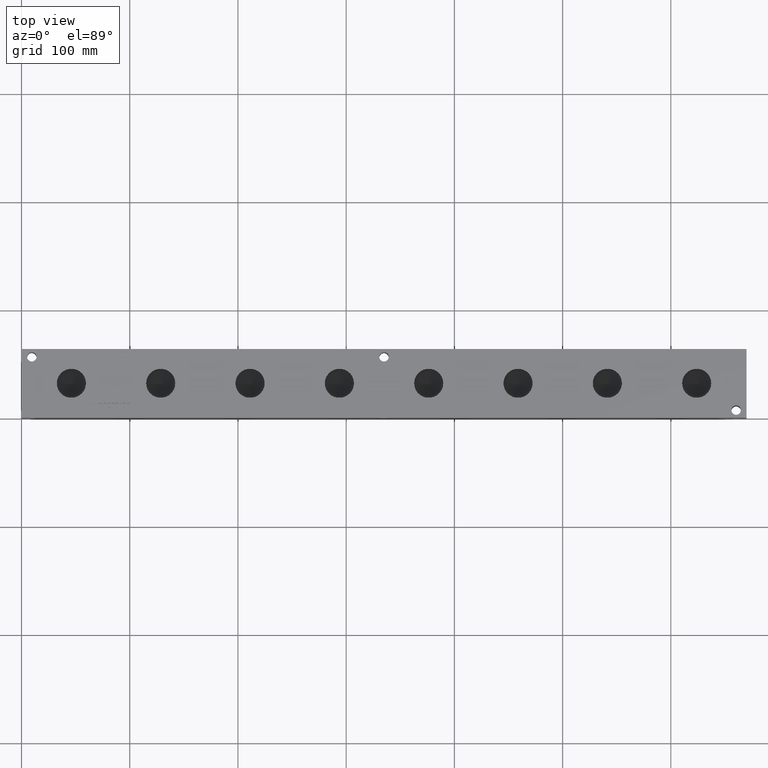
[diagram: clean part render]
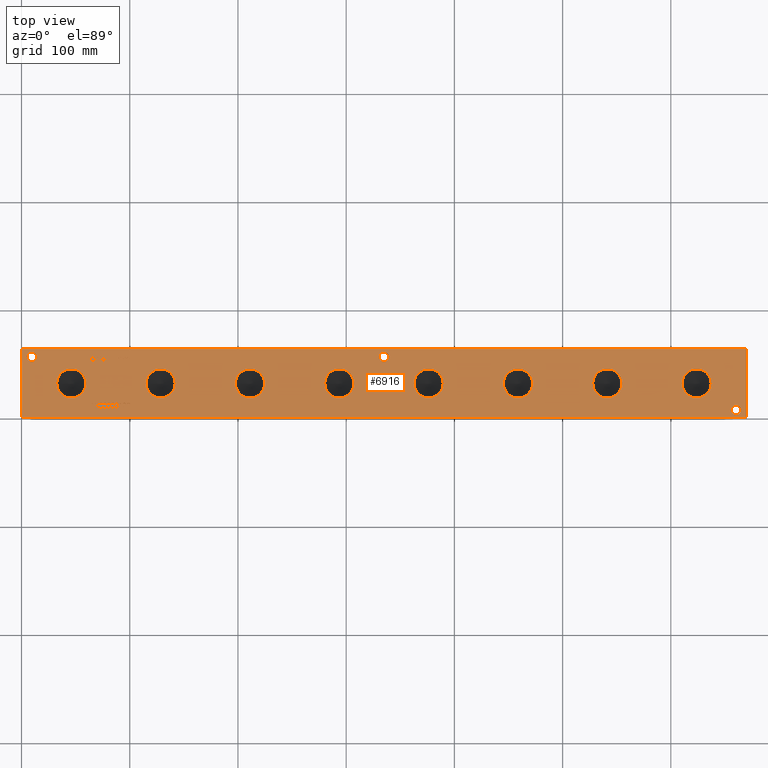
[diagram: same view with one face highlighted and labeled with its STEP entity id]
A machine part, top view. The second image highlights one B-rep face of the part: STEP entity #6916.
In plain terms, the highlighted planar face has unit normal (0, 0, 1).
Its self-contained STEP definition (entity closure, byte-faithful):
#68=CIRCLE('',#7205,4.3688);
#69=CIRCLE('',#7206,4.3688);
#70=CIRCLE('',#7207,4.3688);
#71=CIRCLE('',#7208,4.3688);
#72=CIRCLE('',#7209,4.3688);
#73=CIRCLE('',#7210,4.3688);
#74=CIRCLE('',#7211,13.462);
#75=CIRCLE('',#7212,13.462);
#76=CIRCLE('',#7213,13.462);
#77=CIRCLE('',#7214,13.462);
#78=CIRCLE('',#7215,13.462);
#79=CIRCLE('',#7216,13.462);
#80=CIRCLE('',#7217,13.462);
#81=CIRCLE('',#7218,13.462);
#82=CIRCLE('',#7219,13.462);
#83=CIRCLE('',#7220,13.462);
#84=CIRCLE('',#7221,13.462);
#85=CIRCLE('',#7222,13.462);
#86=CIRCLE('',#7223,13.462);
#87=CIRCLE('',#7224,13.462);
#88=CIRCLE('',#7225,13.462);
#89=CIRCLE('',#7226,13.462);
#163=FACE_BOUND('',#963,.T.);
#164=FACE_BOUND('',#964,.T.);
#165=FACE_BOUND('',#965,.T.);
#166=FACE_BOUND('',#966,.T.);
#167=FACE_BOUND('',#967,.T.);
#168=FACE_BOUND('',#968,.T.);
#169=FACE_BOUND('',#969,.T.);
#170=FACE_BOUND('',#970,.T.);
#171=FACE_BOUND('',#971,.T.);
#172=FACE_BOUND('',#972,.T.);
#173=FACE_BOUND('',#973,.T.);
#174=FACE_BOUND('',#974,.T.);
#175=FACE_BOUND('',#975,.T.);
#176=FACE_BOUND('',#976,.T.);
#177=FACE_BOUND('',#977,.T.);
#178=FACE_BOUND('',#978,.T.);
#179=FACE_BOUND('',#979,.T.);
#180=FACE_BOUND('',#980,.T.);
#181=FACE_BOUND('',#981,.T.);
#182=FACE_BOUND('',#982,.T.);
#183=FACE_BOUND('',#983,.T.);
#184=FACE_BOUND('',#984,.T.);
#185=FACE_BOUND('',#985,.T.);
#186=FACE_BOUND('',#986,.T.);
#187=FACE_BOUND('',#987,.T.);
#188=FACE_BOUND('',#988,.T.);
#189=FACE_BOUND('',#989,.T.);
#190=FACE_BOUND('',#990,.T.);
#191=FACE_BOUND('',#991,.T.);
#192=FACE_BOUND('',#992,.T.);
#283=PLANE('',#7204);
#594=FACE_OUTER_BOUND('',#962,.T.);
#962=EDGE_LOOP('',(#5137,#5138,#5139,#5140));
#963=EDGE_LOOP('',(#5141,#5142,#5143,#5144,#5145,#5146,#5147,#5148,#5149,
#5150,#5151,#5152,#5153,#5154,#5155,#5156,#5157,#5158));
#964=EDGE_LOOP('',(#5159,#5160,#5161,#5162,#5163,#5164,#5165,#5166,#5167,
#5168,#5169,#5170,#5171,#5172,#5173,#5174,#5175,#5176));
#965=EDGE_LOOP('',(#5177,#5178,#5179,#5180,#5181,#5182,#5183,#5184,#5185,
#5186,#5187,#5188,#5189));
#966=EDGE_LOOP('',(#5190,#5191,#5192,#5193,#5194,#5195,#5196,#5197));
#967=EDGE_LOOP('',(#5198,#5199,#5200,#5201,#5202,#5203,#5204));
#968=EDGE_LOOP('',(#5205,#5206,#5207,#5208,#5209,#5210,#5211,#5212));
#969=EDGE_LOOP('',(#5213,#5214,#5215,#5216,#5217,#5218,#5219,#5220,#5221,
#5222));
#970=EDGE_LOOP('',(#5223,#5224,#5225,#5226,#5227,#5228,#5229,#5230,#5231,
#5232,#5233,#5234,#5235,#5236,#5237,#5238,#5239,#5240));
#971=EDGE_LOOP('',(#5241,#5242,#5243,#5244,#5245,#5246,#5247,#5248,#5249,
#5250,#5251,#5252,#5253,#5254,#5255,#5256,#5257,#5258));
#972=EDGE_LOOP('',(#5259,#5260));
#973=EDGE_LOOP('',(#5261,#5262));
#974=EDGE_LOOP('',(#5263,#5264));
#975=EDGE_LOOP('',(#5265,#5266));
#976=EDGE_LOOP('',(#5267,#5268));
#977=EDGE_LOOP('',(#5269,#5270));
#978=EDGE_LOOP('',(#5271,#5272));
#979=EDGE_LOOP('',(#5273,#5274));
#980=EDGE_LOOP('',(#5275,#5276));
#981=EDGE_LOOP('',(#5277,#5278));
#982=EDGE_LOOP('',(#5279,#5280));
#983=EDGE_LOOP('',(#5281,#5282,#5283,#5284,#5285,#5286,#5287,#5288,#5289,
#5290,#5291,#5292,#5293,#5294,#5295,#5296,#5297));
#984=EDGE_LOOP('',(#5298,#5299,#5300,#5301,#5302,#5303,#5304,#5305,#5306,
#5307,#5308));
#985=EDGE_LOOP('',(#5309,#5310,#5311,#5312));
#986=EDGE_LOOP('',(#5313,#5314,#5315,#5316));
#987=EDGE_LOOP('',(#5317,#5318,#5319,#5320));
#988=EDGE_LOOP('',(#5321,#5322,#5323,#5324));
#989=EDGE_LOOP('',(#5325,#5326,#5327,#5328,#5329,#5330,#5331,#5332,#5333,
#5334,#5335,#5336,#5337,#5338,#5339,#5340,#5341,#5342));
#990=EDGE_LOOP('',(#5343,#5344,#5345,#5346,#5347,#5348,#5349,#5350,#5351,
#5352,#5353,#5354));
#991=EDGE_LOOP('',(#5355,#5356,#5357,#5358,#5359,#5360,#5361,#5362,#5363,
#5364,#5365));
#992=EDGE_LOOP('',(#5366,#5367,#5368,#5369,#5370,#5371,#5372,#5373,#5374));
#1240=LINE('',#9062,#1926);
#1243=LINE('',#9068,#1929);
#1246=LINE('',#9074,#1932);
#1249=LINE('',#9080,#1935);
#1252=LINE('',#9086,#1938);
#1256=LINE('',#9129,#1942);
#1260=LINE('',#9137,#1946);
#1263=LINE('',#9143,#1949);
#1266=LINE('',#9149,#1952);
#1270=LINE('',#9174,#1956);
#1273=LINE('',#9180,#1959);
#1276=LINE('',#9186,#1962);
#1279=LINE('',#9192,#1965);
#1282=LINE('',#9198,#1968);
#1285=LINE('',#9203,#1971);
#1287=LINE('',#9209,#1973);
#1291=LINE('',#9217,#1977);
#1294=LINE('',#9223,#1980);
#1297=LINE('',#9229,#1983);
#1300=LINE('',#9235,#1986);
#1303=LINE('',#9241,#1989);
#1306=LINE('',#9247,#1992);
#1309=LINE('',#9253,#1995);
#1312=LINE('',#9259,#1998);
#1315=LINE('',#9265,#2001);
#1318=LINE('',#9271,#2004);
#1321=LINE('',#9276,#2007);
#1323=LINE('',#9282,#2009);
#1327=LINE('',#9290,#2013);
#1330=LINE('',#9296,#2016);
#1333=LINE('',#9302,#2019);
#1336=LINE('',#9308,#2022);
#1339=LINE('',#9314,#2025);
#1342=LINE('',#9320,#2028);
#1345=LINE('',#9326,#2031);
#1348=LINE('',#9332,#2034);
#1351=LINE('',#9338,#2037);
#1354=LINE('',#9344,#2040);
#1357=LINE('',#9350,#2043);
#1360=LINE('',#9356,#2046);
#1363=LINE('',#9362,#2049);
#1366=LINE('',#9368,#2052);
#1369=LINE('',#9374,#2055);
#1372=LINE('',#9380,#2058);
#1375=LINE('',#9385,#2061);
#1438=LINE('',#10537,#2124);
#1445=LINE('',#10619,#2131);
#1450=LINE('',#10681,#2136);
#1454=LINE('',#10689,#2140);
#1462=LINE('',#10790,#2148);
#1465=LINE('',#10796,#2151);
#1474=LINE('',#10916,#2160);
#1477=LINE('',#10921,#2163);
#1479=LINE('',#10927,#2165);
#1480=LINE('',#10929,#2166);
#1481=LINE('',#10931,#2167);
#1482=LINE('',#10932,#2168);
#1483=LINE('',#10935,#2169);
#1484=LINE('',#10937,#2170);
#1485=LINE('',#10939,#2171);
#1486=LINE('',#10941,#2172);
#1487=LINE('',#10943,#2173);
#1488=LINE('',#10945,#2174);
#1489=LINE('',#10947,#2175);
#1490=LINE('',#10949,#2176);
#1491=LINE('',#10951,#2177);
#1492=LINE('',#10953,#2178);
#1493=LINE('',#10955,#2179);
#1494=LINE('',#10957,#2180);
#1495=LINE('',#10959,#2181);
#1496=LINE('',#10961,#2182);
#1497=LINE('',#10963,#2183);
#1498=LINE('',#10965,#2184);
#1499=LINE('',#10967,#2185);
#1500=LINE('',#10968,#2186);
#1501=LINE('',#10971,#2187);
#1502=LINE('',#10973,#2188);
#1503=LINE('',#10975,#2189);
#1504=LINE('',#10977,#2190);
#1505=LINE('',#10979,#2191);
#1506=LINE('',#10981,#2192);
#1507=LINE('',#10983,#2193);
#1508=LINE('',#10985,#2194);
#1509=LINE('',#10987,#2195);
#1510=LINE('',#10989,#2196);
#1511=LINE('',#10991,#2197);
#1512=LINE('',#10993,#2198);
#1513=LINE('',#10995,#2199);
#1514=LINE('',#10997,#2200);
#1515=LINE('',#10999,#2201);
#1516=LINE('',#11001,#2202);
#1517=LINE('',#11003,#2203);
#1518=LINE('',#11004,#2204);
#1519=LINE('',#11007,#2205);
#1520=LINE('',#11009,#2206);
#1521=LINE('',#11011,#2207);
#1522=LINE('',#11013,#2208);
#1523=LINE('',#11015,#2209);
#1524=LINE('',#11017,#2210);
#1525=LINE('',#11019,#2211);
#1526=LINE('',#11021,#2212);
#1527=LINE('',#11023,#2213);
#1528=LINE('',#11025,#2214);
#1529=LINE('',#11027,#2215);
#1530=LINE('',#11029,#2216);
#1531=LINE('',#11030,#2217);
#1532=LINE('',#11033,#2218);
#1533=LINE('',#11035,#2219);
#1534=LINE('',#11037,#2220);
#1535=LINE('',#11039,#2221);
#1536=LINE('',#11041,#2222);
#1537=LINE('',#11043,#2223);
#1538=LINE('',#11045,#2224);
#1539=LINE('',#11046,#2225);
#1540=LINE('',#11064,#2226);
#1541=LINE('',#11066,#2227);
#1542=LINE('',#11068,#2228);
#1543=LINE('',#11075,#2229);
#1544=LINE('',#11077,#2230);
#1545=LINE('',#11079,#2231);
#1546=LINE('',#11081,#2232);
#1547=LINE('',#11083,#2233);
#1548=LINE('',#11085,#2234);
#1549=LINE('',#11087,#2235);
#1550=LINE('',#11088,#2236);
#1551=LINE('',#11091,#2237);
#1552=LINE('',#11093,#2238);
#1553=LINE('',#11095,#2239);
#1554=LINE('',#11097,#2240);
#1555=LINE('',#11099,#2241);
#1556=LINE('',#11101,#2242);
#1557=LINE('',#11103,#2243);
#1558=LINE('',#11105,#2244);
#1559=LINE('',#11107,#2245);
#1560=LINE('',#11108,#2246);
#1561=LINE('',#11111,#2247);
#1562=LINE('',#11113,#2248);
#1563=LINE('',#11115,#2249);
#1564=LINE('',#11117,#2250);
#1565=LINE('',#11119,#2251);
#1566=LINE('',#11121,#2252);
#1567=LINE('',#11123,#2253);
#1568=LINE('',#11125,#2254);
#1569=LINE('',#11127,#2255);
#1570=LINE('',#11129,#2256);
#1571=LINE('',#11131,#2257);
#1572=LINE('',#11133,#2258);
#1573=LINE('',#11135,#2259);
#1574=LINE('',#11137,#2260);
#1575=LINE('',#11139,#2261);
#1576=LINE('',#11141,#2262);
#1577=LINE('',#11143,#2263);
#1578=LINE('',#11144,#2264);
#1579=LINE('',#11147,#2265);
#1580=LINE('',#11149,#2266);
#1581=LINE('',#11151,#2267);
#1582=LINE('',#11153,#2268);
#1583=LINE('',#11155,#2269);
#1584=LINE('',#11157,#2270);
#1585=LINE('',#11159,#2271);
#1586=LINE('',#11161,#2272);
#1587=LINE('',#11163,#2273);
#1588=LINE('',#11165,#2274);
#1589=LINE('',#11167,#2275);
#1590=LINE('',#11169,#2276);
#1591=LINE('',#11171,#2277);
#1592=LINE('',#11173,#2278);
#1593=LINE('',#11175,#2279);
#1594=LINE('',#11177,#2280);
#1595=LINE('',#11179,#2281);
#1596=LINE('',#11180,#2282);
#1926=VECTOR('',#7530,10.);
#1929=VECTOR('',#7535,10.);
#1932=VECTOR('',#7540,10.);
#1935=VECTOR('',#7545,10.);
#1938=VECTOR('',#7550,10.);
#1942=VECTOR('',#7558,10.);
#1946=VECTOR('',#7564,10.);
#1949=VECTOR('',#7569,10.);
#1952=VECTOR('',#7574,10.);
#1956=VECTOR('',#7580,10.);
#1959=VECTOR('',#7585,10.);
#1962=VECTOR('',#7590,10.);
#1965=VECTOR('',#7595,10.);
#1968=VECTOR('',#7600,10.);
#1971=VECTOR('',#7605,10.);
#1973=VECTOR('',#7611,10.);
#1977=VECTOR('',#7617,10.);
#1980=VECTOR('',#7622,10.);
#1983=VECTOR('',#7627,10.);
#1986=VECTOR('',#7632,10.);
#1989=VECTOR('',#7637,10.);
#1992=VECTOR('',#7642,10.);
#1995=VECTOR('',#7647,10.);
#1998=VECTOR('',#7652,10.);
#2001=VECTOR('',#7657,10.);
#2004=VECTOR('',#7662,10.);
#2007=VECTOR('',#7667,10.);
#2009=VECTOR('',#7673,10.);
#2013=VECTOR('',#7679,10.);
#2016=VECTOR('',#7684,10.);
#2019=VECTOR('',#7689,10.);
#2022=VECTOR('',#7694,10.);
#2025=VECTOR('',#7699,10.);
#2028=VECTOR('',#7704,10.);
#2031=VECTOR('',#7709,10.);
#2034=VECTOR('',#7714,10.);
#2037=VECTOR('',#7719,10.);
#2040=VECTOR('',#7724,10.);
#2043=VECTOR('',#7729,10.);
#2046=VECTOR('',#7734,10.);
#2049=VECTOR('',#7739,10.);
#2052=VECTOR('',#7744,10.);
#2055=VECTOR('',#7749,10.);
#2058=VECTOR('',#7754,10.);
#2061=VECTOR('',#7759,10.);
#2124=VECTOR('',#7834,10.);
#2131=VECTOR('',#7843,10.);
#2136=VECTOR('',#7852,10.);
#2140=VECTOR('',#7858,10.);
#2148=VECTOR('',#7868,10.);
#2151=VECTOR('',#7873,10.);
#2160=VECTOR('',#7884,10.);
#2163=VECTOR('',#7889,10.);
#2165=VECTOR('',#7895,10.);
#2166=VECTOR('',#7896,10.);
#2167=VECTOR('',#7897,10.);
#2168=VECTOR('',#7898,10.);
#2169=VECTOR('',#7899,10.);
#2170=VECTOR('',#7900,10.);
#2171=VECTOR('',#7901,10.);
#2172=VECTOR('',#7902,10.);
#2173=VECTOR('',#7903,10.);
#2174=VECTOR('',#7904,10.);
#2175=VECTOR('',#7905,10.);
#2176=VECTOR('',#7906,10.);
#2177=VECTOR('',#7907,10.);
#2178=VECTOR('',#7908,10.);
#2179=VECTOR('',#7909,10.);
#2180=VECTOR('',#7910,10.);
#2181=VECTOR('',#7911,10.);
#2182=VECTOR('',#7912,10.);
#2183=VECTOR('',#7913,10.);
#2184=VECTOR('',#7914,10.);
#2185=VECTOR('',#7915,10.);
#2186=VECTOR('',#7916,10.);
#2187=VECTOR('',#7917,10.);
#2188=VECTOR('',#7918,10.);
#2189=VECTOR('',#7919,10.);
#2190=VECTOR('',#7920,10.);
#2191=VECTOR('',#7921,10.);
#2192=VECTOR('',#7922,10.);
#2193=VECTOR('',#7923,10.);
#2194=VECTOR('',#7924,10.);
#2195=VECTOR('',#7925,10.);
#2196=VECTOR('',#7926,10.);
#2197=VECTOR('',#7927,10.);
#2198=VECTOR('',#7928,10.);
#2199=VECTOR('',#7929,10.);
#2200=VECTOR('',#7930,10.);
#2201=VECTOR('',#7931,10.);
#2202=VECTOR('',#7932,10.);
#2203=VECTOR('',#7933,10.);
#2204=VECTOR('',#7934,10.);
#2205=VECTOR('',#7935,10.);
#2206=VECTOR('',#7936,10.);
#2207=VECTOR('',#7937,10.);
#2208=VECTOR('',#7938,10.);
#2209=VECTOR('',#7939,10.);
#2210=VECTOR('',#7940,10.);
#2211=VECTOR('',#7941,10.);
#2212=VECTOR('',#7942,10.);
#2213=VECTOR('',#7943,10.);
#2214=VECTOR('',#7944,10.);
#2215=VECTOR('',#7945,10.);
#2216=VECTOR('',#7946,10.);
#2217=VECTOR('',#7947,10.);
#2218=VECTOR('',#7948,10.);
#2219=VECTOR('',#7949,10.);
#2220=VECTOR('',#7950,10.);
#2221=VECTOR('',#7951,10.);
#2222=VECTOR('',#7952,10.);
#2223=VECTOR('',#7953,10.);
#2224=VECTOR('',#7954,10.);
#2225=VECTOR('',#7955,10.);
#2226=VECTOR('',#7956,10.);
#2227=VECTOR('',#7957,10.);
#2228=VECTOR('',#7958,10.);
#2229=VECTOR('',#7959,10.);
#2230=VECTOR('',#7960,10.);
#2231=VECTOR('',#7961,10.);
#2232=VECTOR('',#7962,10.);
#2233=VECTOR('',#7963,10.);
#2234=VECTOR('',#7964,10.);
#2235=VECTOR('',#7965,10.);
#2236=VECTOR('',#7966,10.);
#2237=VECTOR('',#7967,10.);
#2238=VECTOR('',#7968,10.);
#2239=VECTOR('',#7969,10.);
#2240=VECTOR('',#7970,10.);
#2241=VECTOR('',#7971,10.);
#2242=VECTOR('',#7972,10.);
#2243=VECTOR('',#7973,10.);
#2244=VECTOR('',#7974,10.);
#2245=VECTOR('',#7975,10.);
#2246=VECTOR('',#7976,10.);
#2247=VECTOR('',#7977,10.);
#2248=VECTOR('',#7978,10.);
#2249=VECTOR('',#7979,10.);
#2250=VECTOR('',#7980,10.);
#2251=VECTOR('',#7981,10.);
#2252=VECTOR('',#7982,10.);
#2253=VECTOR('',#7983,10.);
#2254=VECTOR('',#7984,10.);
#2255=VECTOR('',#7985,10.);
#2256=VECTOR('',#7986,10.);
#2257=VECTOR('',#7987,10.);
#2258=VECTOR('',#7988,10.);
#2259=VECTOR('',#7989,10.);
#2260=VECTOR('',#7990,10.);
#2261=VECTOR('',#7991,10.);
#2262=VECTOR('',#7992,10.);
#2263=VECTOR('',#7993,10.);
#2264=VECTOR('',#7994,10.);
#2265=VECTOR('',#7995,10.);
#2266=VECTOR('',#7996,10.);
#2267=VECTOR('',#7997,10.);
#2268=VECTOR('',#7998,10.);
#2269=VECTOR('',#7999,10.);
#2270=VECTOR('',#8000,10.);
#2271=VECTOR('',#8001,10.);
#2272=VECTOR('',#8002,10.);
#2273=VECTOR('',#8003,10.);
#2274=VECTOR('',#8004,10.);
#2275=VECTOR('',#8005,10.);
#2276=VECTOR('',#8006,10.);
#2277=VECTOR('',#8007,10.);
#2278=VECTOR('',#8008,10.);
#2279=VECTOR('',#8009,10.);
#2280=VECTOR('',#8010,10.);
#2281=VECTOR('',#8011,10.);
#2282=VECTOR('',#8012,10.);
#2604=B_SPLINE_CURVE_WITH_KNOTS('',2,(#9029,#9030,#9031,#9032),
 .UNSPECIFIED.,.F.,.F.,(3,1,3),(0.,1.,2.),.UNSPECIFIED.);
#2606=B_SPLINE_CURVE_WITH_KNOTS('',2,(#9050,#9051,#9052,#9053),
 .UNSPECIFIED.,.F.,.F.,(3,1,3),(0.,1.,2.),.UNSPECIFIED.);
#2608=B_SPLINE_CURVE_WITH_KNOTS('',2,(#9099,#9100,#9101,#9102),
 .UNSPECIFIED.,.F.,.F.,(3,1,3),(0.,1.,2.),.UNSPECIFIED.);
#2610=B_SPLINE_CURVE_WITH_KNOTS('',2,(#9117,#9118,#9119,#9120),
 .UNSPECIFIED.,.F.,.F.,(3,1,3),(0.,1.,2.),.UNSPECIFIED.);
#2612=B_SPLINE_CURVE_WITH_KNOTS('',2,(#9162,#9163,#9164,#9165),
 .UNSPECIFIED.,.F.,.F.,(3,1,3),(0.,1.,2.),.UNSPECIFIED.);
#2630=B_SPLINE_CURVE_WITH_KNOTS('',2,(#9550,#9551,#9552,#9553),
 .UNSPECIFIED.,.F.,.F.,(3,1,3),(0.,1.,2.),.UNSPECIFIED.);
#2632=B_SPLINE_CURVE_WITH_KNOTS('',2,(#9571,#9572,#9573,#9574),
 .UNSPECIFIED.,.F.,.F.,(3,1,3),(0.,1.,2.),.UNSPECIFIED.);
#2634=B_SPLINE_CURVE_WITH_KNOTS('',2,(#9590,#9591,#9592,#9593),
 .UNSPECIFIED.,.F.,.F.,(3,1,3),(0.,1.,2.),.UNSPECIFIED.);
#2636=B_SPLINE_CURVE_WITH_KNOTS('',2,(#9608,#9609,#9610,#9611),
 .UNSPECIFIED.,.F.,.F.,(3,1,3),(0.,1.,2.),.UNSPECIFIED.);
#2654=B_SPLINE_CURVE_WITH_KNOTS('',2,(#9779,#9780,#9781,#9782),
 .UNSPECIFIED.,.F.,.F.,(3,1,3),(0.,1.,2.),.UNSPECIFIED.);
#2656=B_SPLINE_CURVE_WITH_KNOTS('',2,(#9800,#9801,#9802,#9803),
 .UNSPECIFIED.,.F.,.F.,(3,1,3),(0.,1.,2.),.UNSPECIFIED.);
#2658=B_SPLINE_CURVE_WITH_KNOTS('',2,(#9819,#9820,#9821,#9822),
 .UNSPECIFIED.,.F.,.F.,(3,1,3),(0.,1.,2.),.UNSPECIFIED.);
#2660=B_SPLINE_CURVE_WITH_KNOTS('',2,(#9837,#9838,#9839,#9840),
 .UNSPECIFIED.,.F.,.F.,(3,1,3),(0.,1.,2.),.UNSPECIFIED.);
#2678=B_SPLINE_CURVE_WITH_KNOTS('',2,(#10008,#10009,#10010,#10011),
 .UNSPECIFIED.,.F.,.F.,(3,1,3),(0.,1.,2.),.UNSPECIFIED.);
#2680=B_SPLINE_CURVE_WITH_KNOTS('',2,(#10029,#10030,#10031,#10032),
 .UNSPECIFIED.,.F.,.F.,(3,1,3),(0.,1.,2.),.UNSPECIFIED.);
#2682=B_SPLINE_CURVE_WITH_KNOTS('',2,(#10048,#10049,#10050,#10051),
 .UNSPECIFIED.,.F.,.F.,(3,1,3),(0.,1.,2.),.UNSPECIFIED.);
#2684=B_SPLINE_CURVE_WITH_KNOTS('',2,(#10066,#10067,#10068,#10069),
 .UNSPECIFIED.,.F.,.F.,(3,1,3),(0.,1.,2.),.UNSPECIFIED.);
#2702=B_SPLINE_CURVE_WITH_KNOTS('',2,(#10237,#10238,#10239,#10240),
 .UNSPECIFIED.,.F.,.F.,(3,1,3),(0.,1.,2.),.UNSPECIFIED.);
#2704=B_SPLINE_CURVE_WITH_KNOTS('',2,(#10258,#10259,#10260,#10261),
 .UNSPECIFIED.,.F.,.F.,(3,1,3),(0.,1.,2.),.UNSPECIFIED.);
#2706=B_SPLINE_CURVE_WITH_KNOTS('',2,(#10277,#10278,#10279,#10280),
 .UNSPECIFIED.,.F.,.F.,(3,1,3),(0.,1.,2.),.UNSPECIFIED.);
#2708=B_SPLINE_CURVE_WITH_KNOTS('',2,(#10295,#10296,#10297,#10298),
 .UNSPECIFIED.,.F.,.F.,(3,1,3),(0.,1.,2.),.UNSPECIFIED.);
#2730=B_SPLINE_CURVE_WITH_KNOTS('',2,(#10504,#10505,#10506,#10507),
 .UNSPECIFIED.,.F.,.F.,(3,1,3),(0.,1.,2.),.UNSPECIFIED.);
#2732=B_SPLINE_CURVE_WITH_KNOTS('',2,(#10525,#10526,#10527,#10528),
 .UNSPECIFIED.,.F.,.F.,(3,1,3),(0.,1.,2.),.UNSPECIFIED.);
#2734=B_SPLINE_CURVE_WITH_KNOTS('',2,(#10550,#10551,#10552,#10553),
 .UNSPECIFIED.,.F.,.F.,(3,1,3),(0.,1.,2.),.UNSPECIFIED.);
#2736=B_SPLINE_CURVE_WITH_KNOTS('',2,(#10569,#10570,#10571,#10572),
 .UNSPECIFIED.,.F.,.F.,(3,1,3),(0.,1.,2.),.UNSPECIFIED.);
#2738=B_SPLINE_CURVE_WITH_KNOTS('',2,(#10588,#10589,#10590,#10591),
 .UNSPECIFIED.,.F.,.F.,(3,1,3),(0.,1.,2.),.UNSPECIFIED.);
#2740=B_SPLINE_CURVE_WITH_KNOTS('',2,(#10607,#10608,#10609,#10610),
 .UNSPECIFIED.,.F.,.F.,(3,1,3),(0.,1.,2.),.UNSPECIFIED.);
#2742=B_SPLINE_CURVE_WITH_KNOTS('',2,(#10632,#10633,#10634,#10635),
 .UNSPECIFIED.,.F.,.F.,(3,1,3),(0.,1.,2.),.UNSPECIFIED.);
#2744=B_SPLINE_CURVE_WITH_KNOTS('',2,(#10651,#10652,#10653,#10654),
 .UNSPECIFIED.,.F.,.F.,(3,1,3),(0.,1.,2.),.UNSPECIFIED.);
#2746=B_SPLINE_CURVE_WITH_KNOTS('',2,(#10669,#10670,#10671,#10672),
 .UNSPECIFIED.,.F.,.F.,(3,1,3),(0.,1.,2.),.UNSPECIFIED.);
#2748=B_SPLINE_CURVE_WITH_KNOTS('',2,(#10702,#10703,#10704,#10705),
 .UNSPECIFIED.,.F.,.F.,(3,1,3),(0.,1.,2.),.UNSPECIFIED.);
#2750=B_SPLINE_CURVE_WITH_KNOTS('',2,(#10721,#10722,#10723,#10724),
 .UNSPECIFIED.,.F.,.F.,(3,1,3),(0.,1.,2.),.UNSPECIFIED.);
#2752=B_SPLINE_CURVE_WITH_KNOTS('',2,(#10740,#10741,#10742,#10743),
 .UNSPECIFIED.,.F.,.F.,(3,1,3),(0.,1.,2.),.UNSPECIFIED.);
#2754=B_SPLINE_CURVE_WITH_KNOTS('',2,(#10759,#10760,#10761,#10762),
 .UNSPECIFIED.,.F.,.F.,(3,1,3),(0.,1.,2.),.UNSPECIFIED.);
#2756=B_SPLINE_CURVE_WITH_KNOTS('',2,(#10778,#10779,#10780,#10781),
 .UNSPECIFIED.,.F.,.F.,(3,1,3),(0.,1.,2.),.UNSPECIFIED.);
#2758=B_SPLINE_CURVE_WITH_KNOTS('',2,(#10809,#10810,#10811,#10812),
 .UNSPECIFIED.,.F.,.F.,(3,1,3),(0.,1.,2.),.UNSPECIFIED.);
#2760=B_SPLINE_CURVE_WITH_KNOTS('',2,(#10828,#10829,#10830,#10831),
 .UNSPECIFIED.,.F.,.F.,(3,1,3),(0.,1.,2.),.UNSPECIFIED.);
#2762=B_SPLINE_CURVE_WITH_KNOTS('',2,(#10847,#10848,#10849,#10850),
 .UNSPECIFIED.,.F.,.F.,(3,1,3),(0.,1.,2.),.UNSPECIFIED.);
#2764=B_SPLINE_CURVE_WITH_KNOTS('',2,(#10866,#10867,#10868,#10869),
 .UNSPECIFIED.,.F.,.F.,(3,1,3),(0.,1.,2.),.UNSPECIFIED.);
#2766=B_SPLINE_CURVE_WITH_KNOTS('',2,(#10885,#10886,#10887,#10888),
 .UNSPECIFIED.,.F.,.F.,(3,1,3),(0.,1.,2.),.UNSPECIFIED.);
#2768=B_SPLINE_CURVE_WITH_KNOTS('',2,(#10904,#10905,#10906,#10907),
 .UNSPECIFIED.,.F.,.F.,(3,1,3),(0.,1.,2.),.UNSPECIFIED.);
#2770=B_SPLINE_CURVE_WITH_KNOTS('',2,(#11049,#11050,#11051,#11052),
 .UNSPECIFIED.,.F.,.F.,(3,1,3),(0.,1.,2.),.UNSPECIFIED.);
#2771=B_SPLINE_CURVE_WITH_KNOTS('',2,(#11054,#11055,#11056,#11057),
 .UNSPECIFIED.,.F.,.F.,(3,1,3),(0.,1.,2.),.UNSPECIFIED.);
#2772=B_SPLINE_CURVE_WITH_KNOTS('',2,(#11059,#11060,#11061,#11062),
 .UNSPECIFIED.,.F.,.F.,(3,1,3),(0.,1.,2.),.UNSPECIFIED.);
#2773=B_SPLINE_CURVE_WITH_KNOTS('',2,(#11069,#11070,#11071,#11072),
 .UNSPECIFIED.,.F.,.F.,(3,1,3),(0.,1.,2.),.UNSPECIFIED.);
#2800=VERTEX_POINT('',#9027);
#2801=VERTEX_POINT('',#9028);
#2804=VERTEX_POINT('',#9049);
#2806=VERTEX_POINT('',#9061);
#2808=VERTEX_POINT('',#9067);
#2810=VERTEX_POINT('',#9073);
#2812=VERTEX_POINT('',#9079);
#2814=VERTEX_POINT('',#9085);
#2816=VERTEX_POINT('',#9098);
#2818=VERTEX_POINT('',#9127);
#2819=VERTEX_POINT('',#9128);
#2822=VERTEX_POINT('',#9136);
#2824=VERTEX_POINT('',#9142);
#2826=VERTEX_POINT('',#9148);
#2828=VERTEX_POINT('',#9161);
#2830=VERTEX_POINT('',#9173);
#2832=VERTEX_POINT('',#9179);
#2834=VERTEX_POINT('',#9185);
#2836=VERTEX_POINT('',#9191);
#2838=VERTEX_POINT('',#9197);
#2840=VERTEX_POINT('',#9207);
#2841=VERTEX_POINT('',#9208);
#2844=VERTEX_POINT('',#9216);
#2846=VERTEX_POINT('',#9222);
#2848=VERTEX_POINT('',#9228);
#2850=VERTEX_POINT('',#9234);
#2852=VERTEX_POINT('',#9240);
#2854=VERTEX_POINT('',#9246);
#2856=VERTEX_POINT('',#9252);
#2858=VERTEX_POINT('',#9258);
#2860=VERTEX_POINT('',#9264);
#2862=VERTEX_POINT('',#9270);
#2864=VERTEX_POINT('',#9280);
#2865=VERTEX_POINT('',#9281);
#2868=VERTEX_POINT('',#9289);
#2870=VERTEX_POINT('',#9295);
#2872=VERTEX_POINT('',#9301);
#2874=VERTEX_POINT('',#9307);
#2876=VERTEX_POINT('',#9313);
#2878=VERTEX_POINT('',#9319);
#2880=VERTEX_POINT('',#9325);
#2882=VERTEX_POINT('',#9331);
#2884=VERTEX_POINT('',#9337);
#2886=VERTEX_POINT('',#9343);
#2888=VERTEX_POINT('',#9349);
#2890=VERTEX_POINT('',#9355);
#2892=VERTEX_POINT('',#9361);
#2894=VERTEX_POINT('',#9367);
#2896=VERTEX_POINT('',#9373);
#2898=VERTEX_POINT('',#9379);
#2916=VERTEX_POINT('',#9548);
#2917=VERTEX_POINT('',#9549);
#2920=VERTEX_POINT('',#9570);
#2922=VERTEX_POINT('',#9589);
#2940=VERTEX_POINT('',#9777);
#2941=VERTEX_POINT('',#9778);
#2944=VERTEX_POINT('',#9799);
#2946=VERTEX_POINT('',#9818);
#2964=VERTEX_POINT('',#10006);
#2965=VERTEX_POINT('',#10007);
#2968=VERTEX_POINT('',#10028);
#2970=VERTEX_POINT('',#10047);
#2988=VERTEX_POINT('',#10235);
#2989=VERTEX_POINT('',#10236);
#2992=VERTEX_POINT('',#10257);
#2994=VERTEX_POINT('',#10276);
#3016=VERTEX_POINT('',#10502);
#3017=VERTEX_POINT('',#10503);
#3020=VERTEX_POINT('',#10524);
#3022=VERTEX_POINT('',#10536);
#3024=VERTEX_POINT('',#10549);
#3026=VERTEX_POINT('',#10568);
#3028=VERTEX_POINT('',#10587);
#3030=VERTEX_POINT('',#10606);
#3032=VERTEX_POINT('',#10618);
#3034=VERTEX_POINT('',#10631);
#3036=VERTEX_POINT('',#10650);
#3038=VERTEX_POINT('',#10679);
#3039=VERTEX_POINT('',#10680);
#3042=VERTEX_POINT('',#10688);
#3044=VERTEX_POINT('',#10701);
#3046=VERTEX_POINT('',#10720);
#3048=VERTEX_POINT('',#10739);
#3050=VERTEX_POINT('',#10758);
#3052=VERTEX_POINT('',#10777);
#3054=VERTEX_POINT('',#10789);
#3056=VERTEX_POINT('',#10795);
#3058=VERTEX_POINT('',#10808);
#3060=VERTEX_POINT('',#10827);
#3062=VERTEX_POINT('',#10846);
#3064=VERTEX_POINT('',#10865);
#3066=VERTEX_POINT('',#10884);
#3068=VERTEX_POINT('',#10903);
#3070=VERTEX_POINT('',#10915);
#3072=VERTEX_POINT('',#10925);
#3073=VERTEX_POINT('',#10926);
#3074=VERTEX_POINT('',#10928);
#3075=VERTEX_POINT('',#10930);
#3076=VERTEX_POINT('',#10933);
#3077=VERTEX_POINT('',#10934);
#3078=VERTEX_POINT('',#10936);
#3079=VERTEX_POINT('',#10938);
#3080=VERTEX_POINT('',#10940);
#3081=VERTEX_POINT('',#10942);
#3082=VERTEX_POINT('',#10944);
#3083=VERTEX_POINT('',#10946);
#3084=VERTEX_POINT('',#10948);
#3085=VERTEX_POINT('',#10950);
#3086=VERTEX_POINT('',#10952);
#3087=VERTEX_POINT('',#10954);
#3088=VERTEX_POINT('',#10956);
#3089=VERTEX_POINT('',#10958);
#3090=VERTEX_POINT('',#10960);
#3091=VERTEX_POINT('',#10962);
#3092=VERTEX_POINT('',#10964);
#3093=VERTEX_POINT('',#10966);
#3094=VERTEX_POINT('',#10969);
#3095=VERTEX_POINT('',#10970);
#3096=VERTEX_POINT('',#10972);
#3097=VERTEX_POINT('',#10974);
#3098=VERTEX_POINT('',#10976);
#3099=VERTEX_POINT('',#10978);
#3100=VERTEX_POINT('',#10980);
#3101=VERTEX_POINT('',#10982);
#3102=VERTEX_POINT('',#10984);
#3103=VERTEX_POINT('',#10986);
#3104=VERTEX_POINT('',#10988);
#3105=VERTEX_POINT('',#10990);
#3106=VERTEX_POINT('',#10992);
#3107=VERTEX_POINT('',#10994);
#3108=VERTEX_POINT('',#10996);
#3109=VERTEX_POINT('',#10998);
#3110=VERTEX_POINT('',#11000);
#3111=VERTEX_POINT('',#11002);
#3112=VERTEX_POINT('',#11005);
#3113=VERTEX_POINT('',#11006);
#3114=VERTEX_POINT('',#11008);
#3115=VERTEX_POINT('',#11010);
#3116=VERTEX_POINT('',#11012);
#3117=VERTEX_POINT('',#11014);
#3118=VERTEX_POINT('',#11016);
#3119=VERTEX_POINT('',#11018);
#3120=VERTEX_POINT('',#11020);
#3121=VERTEX_POINT('',#11022);
#3122=VERTEX_POINT('',#11024);
#3123=VERTEX_POINT('',#11026);
#3124=VERTEX_POINT('',#11028);
#3125=VERTEX_POINT('',#11031);
#3126=VERTEX_POINT('',#11032);
#3127=VERTEX_POINT('',#11034);
#3128=VERTEX_POINT('',#11036);
#3129=VERTEX_POINT('',#11038);
#3130=VERTEX_POINT('',#11040);
#3131=VERTEX_POINT('',#11042);
#3132=VERTEX_POINT('',#11044);
#3133=VERTEX_POINT('',#11047);
#3134=VERTEX_POINT('',#11048);
#3135=VERTEX_POINT('',#11053);
#3136=VERTEX_POINT('',#11058);
#3137=VERTEX_POINT('',#11063);
#3138=VERTEX_POINT('',#11065);
#3139=VERTEX_POINT('',#11067);
#3140=VERTEX_POINT('',#11073);
#3141=VERTEX_POINT('',#11074);
#3142=VERTEX_POINT('',#11076);
#3143=VERTEX_POINT('',#11078);
#3144=VERTEX_POINT('',#11080);
#3145=VERTEX_POINT('',#11082);
#3146=VERTEX_POINT('',#11084);
#3147=VERTEX_POINT('',#11086);
#3148=VERTEX_POINT('',#11089);
#3149=VERTEX_POINT('',#11090);
#3150=VERTEX_POINT('',#11092);
#3151=VERTEX_POINT('',#11094);
#3152=VERTEX_POINT('',#11096);
#3153=VERTEX_POINT('',#11098);
#3154=VERTEX_POINT('',#11100);
#3155=VERTEX_POINT('',#11102);
#3156=VERTEX_POINT('',#11104);
#3157=VERTEX_POINT('',#11106);
#3158=VERTEX_POINT('',#11109);
#3159=VERTEX_POINT('',#11110);
#3160=VERTEX_POINT('',#11112);
#3161=VERTEX_POINT('',#11114);
#3162=VERTEX_POINT('',#11116);
#3163=VERTEX_POINT('',#11118);
#3164=VERTEX_POINT('',#11120);
#3165=VERTEX_POINT('',#11122);
#3166=VERTEX_POINT('',#11124);
#3167=VERTEX_POINT('',#11126);
#3168=VERTEX_POINT('',#11128);
#3169=VERTEX_POINT('',#11130);
#3170=VERTEX_POINT('',#11132);
#3171=VERTEX_POINT('',#11134);
#3172=VERTEX_POINT('',#11136);
#3173=VERTEX_POINT('',#11138);
#3174=VERTEX_POINT('',#11140);
#3175=VERTEX_POINT('',#11142);
#3176=VERTEX_POINT('',#11145);
#3177=VERTEX_POINT('',#11146);
#3178=VERTEX_POINT('',#11148);
#3179=VERTEX_POINT('',#11150);
#3180=VERTEX_POINT('',#11152);
#3181=VERTEX_POINT('',#11154);
#3182=VERTEX_POINT('',#11156);
#3183=VERTEX_POINT('',#11158);
#3184=VERTEX_POINT('',#11160);
#3185=VERTEX_POINT('',#11162);
#3186=VERTEX_POINT('',#11164);
#3187=VERTEX_POINT('',#11166);
#3188=VERTEX_POINT('',#11168);
#3189=VERTEX_POINT('',#11170);
#3190=VERTEX_POINT('',#11172);
#3191=VERTEX_POINT('',#11174);
#3192=VERTEX_POINT('',#11176);
#3193=VERTEX_POINT('',#11178);
#3194=VERTEX_POINT('',#11181);
#3195=VERTEX_POINT('',#11182);
#3196=VERTEX_POINT('',#11185);
#3197=VERTEX_POINT('',#11186);
#3198=VERTEX_POINT('',#11189);
#3199=VERTEX_POINT('',#11190);
#3200=VERTEX_POINT('',#11193);
#3201=VERTEX_POINT('',#11194);
#3202=VERTEX_POINT('',#11197);
#3203=VERTEX_POINT('',#11198);
#3204=VERTEX_POINT('',#11201);
#3205=VERTEX_POINT('',#11202);
#3206=VERTEX_POINT('',#11205);
#3207=VERTEX_POINT('',#11206);
#3208=VERTEX_POINT('',#11209);
#3209=VERTEX_POINT('',#11210);
#3210=VERTEX_POINT('',#11213);
#3211=VERTEX_POINT('',#11214);
#3212=VERTEX_POINT('',#11217);
#3213=VERTEX_POINT('',#11218);
#3214=VERTEX_POINT('',#11221);
#3215=VERTEX_POINT('',#11222);
#3467=EDGE_CURVE('',#2800,#2801,#2604,.T.);
#3471=EDGE_CURVE('',#2804,#2800,#2606,.T.);
#3474=EDGE_CURVE('',#2806,#2804,#1240,.T.);
#3477=EDGE_CURVE('',#2808,#2806,#1243,.T.);
#3480=EDGE_CURVE('',#2810,#2808,#1246,.T.);
#3483=EDGE_CURVE('',#2812,#2810,#1249,.T.);
#3486=EDGE_CURVE('',#2814,#2812,#1252,.T.);
#3489=EDGE_CURVE('',#2816,#2814,#2608,.T.);
#3492=EDGE_CURVE('',#2801,#2816,#2610,.T.);
#3494=EDGE_CURVE('',#2818,#2819,#1256,.T.);
#3498=EDGE_CURVE('',#2822,#2818,#1260,.T.);
#3501=EDGE_CURVE('',#2824,#2822,#1263,.T.);
#3504=EDGE_CURVE('',#2826,#2824,#1266,.T.);
#3507=EDGE_CURVE('',#2828,#2826,#2612,.T.);
#3510=EDGE_CURVE('',#2830,#2828,#1270,.T.);
#3513=EDGE_CURVE('',#2832,#2830,#1273,.T.);
#3516=EDGE_CURVE('',#2834,#2832,#1276,.T.);
#3519=EDGE_CURVE('',#2836,#2834,#1279,.T.);
#3522=EDGE_CURVE('',#2838,#2836,#1282,.T.);
#3525=EDGE_CURVE('',#2819,#2838,#1285,.T.);
#3527=EDGE_CURVE('',#2840,#2841,#1287,.T.);
#3531=EDGE_CURVE('',#2844,#2840,#1291,.T.);
#3534=EDGE_CURVE('',#2846,#2844,#1294,.T.);
#3537=EDGE_CURVE('',#2848,#2846,#1297,.T.);
#3540=EDGE_CURVE('',#2850,#2848,#1300,.T.);
#3543=EDGE_CURVE('',#2852,#2850,#1303,.T.);
#3546=EDGE_CURVE('',#2854,#2852,#1306,.T.);
#3549=EDGE_CURVE('',#2856,#2854,#1309,.T.);
#3552=EDGE_CURVE('',#2858,#2856,#1312,.T.);
#3555=EDGE_CURVE('',#2860,#2858,#1315,.T.);
#3558=EDGE_CURVE('',#2862,#2860,#1318,.T.);
#3561=EDGE_CURVE('',#2841,#2862,#1321,.T.);
#3563=EDGE_CURVE('',#2864,#2865,#1323,.T.);
#3567=EDGE_CURVE('',#2868,#2864,#1327,.T.);
#3570=EDGE_CURVE('',#2870,#2868,#1330,.T.);
#3573=EDGE_CURVE('',#2872,#2870,#1333,.T.);
#3576=EDGE_CURVE('',#2874,#2872,#1336,.T.);
#3579=EDGE_CURVE('',#2876,#2874,#1339,.T.);
#3582=EDGE_CURVE('',#2878,#2876,#1342,.T.);
#3585=EDGE_CURVE('',#2880,#2878,#1345,.T.);
#3588=EDGE_CURVE('',#2882,#2880,#1348,.T.);
#3591=EDGE_CURVE('',#2884,#2882,#1351,.T.);
#3594=EDGE_CURVE('',#2886,#2884,#1354,.T.);
#3597=EDGE_CURVE('',#2888,#2886,#1357,.T.);
#3600=EDGE_CURVE('',#2890,#2888,#1360,.T.);
#3603=EDGE_CURVE('',#2892,#2890,#1363,.T.);
#3606=EDGE_CURVE('',#2894,#2892,#1366,.T.);
#3609=EDGE_CURVE('',#2896,#2894,#1369,.T.);
#3612=EDGE_CURVE('',#2898,#2896,#1372,.T.);
#3615=EDGE_CURVE('',#2865,#2898,#1375,.T.);
#3641=EDGE_CURVE('',#2916,#2917,#2630,.T.);
#3645=EDGE_CURVE('',#2920,#2916,#2632,.T.);
#3648=EDGE_CURVE('',#2922,#2920,#2634,.T.);
#3651=EDGE_CURVE('',#2917,#2922,#2636,.T.);
#3677=EDGE_CURVE('',#2940,#2941,#2654,.T.);
#3681=EDGE_CURVE('',#2944,#2940,#2656,.T.);
#3684=EDGE_CURVE('',#2946,#2944,#2658,.T.);
#3687=EDGE_CURVE('',#2941,#2946,#2660,.T.);
#3713=EDGE_CURVE('',#2964,#2965,#2678,.T.);
#3717=EDGE_CURVE('',#2968,#2964,#2680,.T.);
#3720=EDGE_CURVE('',#2970,#2968,#2682,.T.);
#3723=EDGE_CURVE('',#2965,#2970,#2684,.T.);
#3749=EDGE_CURVE('',#2988,#2989,#2702,.T.);
#3753=EDGE_CURVE('',#2992,#2988,#2704,.T.);
#3756=EDGE_CURVE('',#2994,#2992,#2706,.T.);
#3759=EDGE_CURVE('',#2989,#2994,#2708,.T.);
#3791=EDGE_CURVE('',#3016,#3017,#2730,.T.);
#3795=EDGE_CURVE('',#3020,#3016,#2732,.T.);
#3798=EDGE_CURVE('',#3022,#3020,#1438,.T.);
#3801=EDGE_CURVE('',#3024,#3022,#2734,.T.);
#3804=EDGE_CURVE('',#3026,#3024,#2736,.T.);
#3807=EDGE_CURVE('',#3028,#3026,#2738,.T.);
#3810=EDGE_CURVE('',#3030,#3028,#2740,.T.);
#3813=EDGE_CURVE('',#3032,#3030,#1445,.T.);
#3816=EDGE_CURVE('',#3034,#3032,#2742,.T.);
#3819=EDGE_CURVE('',#3036,#3034,#2744,.T.);
#3822=EDGE_CURVE('',#3017,#3036,#2746,.T.);
#3824=EDGE_CURVE('',#3038,#3039,#1450,.T.);
#3828=EDGE_CURVE('',#3042,#3038,#1454,.T.);
#3831=EDGE_CURVE('',#3044,#3042,#2748,.T.);
#3834=EDGE_CURVE('',#3046,#3044,#2750,.T.);
#3837=EDGE_CURVE('',#3048,#3046,#2752,.T.);
#3840=EDGE_CURVE('',#3050,#3048,#2754,.T.);
#3843=EDGE_CURVE('',#3052,#3050,#2756,.T.);
#3846=EDGE_CURVE('',#3054,#3052,#1462,.T.);
#3849=EDGE_CURVE('',#3056,#3054,#1465,.T.);
#3852=EDGE_CURVE('',#3058,#3056,#2758,.T.);
#3855=EDGE_CURVE('',#3060,#3058,#2760,.T.);
#3858=EDGE_CURVE('',#3062,#3060,#2762,.T.);
#3861=EDGE_CURVE('',#3064,#3062,#2764,.T.);
#3864=EDGE_CURVE('',#3066,#3064,#2766,.T.);
#3867=EDGE_CURVE('',#3068,#3066,#2768,.T.);
#3870=EDGE_CURVE('',#3070,#3068,#1474,.T.);
#3873=EDGE_CURVE('',#3039,#3070,#1477,.T.);
#3875=EDGE_CURVE('',#3072,#3073,#1479,.T.);
#3876=EDGE_CURVE('',#3073,#3074,#1480,.T.);
#3877=EDGE_CURVE('',#3074,#3075,#1481,.T.);
#3878=EDGE_CURVE('',#3075,#3072,#1482,.T.);
#3879=EDGE_CURVE('',#3076,#3077,#1483,.T.);
#3880=EDGE_CURVE('',#3077,#3078,#1484,.T.);
#3881=EDGE_CURVE('',#3078,#3079,#1485,.T.);
#3882=EDGE_CURVE('',#3079,#3080,#1486,.T.);
#3883=EDGE_CURVE('',#3080,#3081,#1487,.T.);
#3884=EDGE_CURVE('',#3081,#3082,#1488,.T.);
#3885=EDGE_CURVE('',#3082,#3083,#1489,.T.);
#3886=EDGE_CURVE('',#3083,#3084,#1490,.T.);
#3887=EDGE_CURVE('',#3084,#3085,#1491,.T.);
#3888=EDGE_CURVE('',#3085,#3086,#1492,.T.);
#3889=EDGE_CURVE('',#3086,#3087,#1493,.T.);
#3890=EDGE_CURVE('',#3087,#3088,#1494,.T.);
#3891=EDGE_CURVE('',#3088,#3089,#1495,.T.);
#3892=EDGE_CURVE('',#3089,#3090,#1496,.T.);
#3893=EDGE_CURVE('',#3090,#3091,#1497,.T.);
#3894=EDGE_CURVE('',#3091,#3092,#1498,.T.);
#3895=EDGE_CURVE('',#3092,#3093,#1499,.T.);
#3896=EDGE_CURVE('',#3093,#3076,#1500,.T.);
#3897=EDGE_CURVE('',#3094,#3095,#1501,.T.);
#3898=EDGE_CURVE('',#3095,#3096,#1502,.T.);
#3899=EDGE_CURVE('',#3096,#3097,#1503,.T.);
#3900=EDGE_CURVE('',#3097,#3098,#1504,.T.);
#3901=EDGE_CURVE('',#3098,#3099,#1505,.T.);
#3902=EDGE_CURVE('',#3099,#3100,#1506,.T.);
#3903=EDGE_CURVE('',#3100,#3101,#1507,.T.);
#3904=EDGE_CURVE('',#3101,#3102,#1508,.T.);
#3905=EDGE_CURVE('',#3102,#3103,#1509,.T.);
#3906=EDGE_CURVE('',#3103,#3104,#1510,.T.);
#3907=EDGE_CURVE('',#3104,#3105,#1511,.T.);
#3908=EDGE_CURVE('',#3105,#3106,#1512,.T.);
#3909=EDGE_CURVE('',#3106,#3107,#1513,.T.);
#3910=EDGE_CURVE('',#3107,#3108,#1514,.T.);
#3911=EDGE_CURVE('',#3108,#3109,#1515,.T.);
#3912=EDGE_CURVE('',#3109,#3110,#1516,.T.);
#3913=EDGE_CURVE('',#3110,#3111,#1517,.T.);
#3914=EDGE_CURVE('',#3111,#3094,#1518,.T.);
#3915=EDGE_CURVE('',#3112,#3113,#1519,.T.);
#3916=EDGE_CURVE('',#3113,#3114,#1520,.T.);
#3917=EDGE_CURVE('',#3114,#3115,#1521,.T.);
#3918=EDGE_CURVE('',#3115,#3116,#1522,.T.);
#3919=EDGE_CURVE('',#3116,#3117,#1523,.T.);
#3920=EDGE_CURVE('',#3117,#3118,#1524,.T.);
#3921=EDGE_CURVE('',#3118,#3119,#1525,.T.);
#3922=EDGE_CURVE('',#3119,#3120,#1526,.T.);
#3923=EDGE_CURVE('',#3120,#3121,#1527,.T.);
#3924=EDGE_CURVE('',#3121,#3122,#1528,.T.);
#3925=EDGE_CURVE('',#3122,#3123,#1529,.T.);
#3926=EDGE_CURVE('',#3123,#3124,#1530,.T.);
#3927=EDGE_CURVE('',#3124,#3112,#1531,.T.);
#3928=EDGE_CURVE('',#3125,#3126,#1532,.T.);
#3929=EDGE_CURVE('',#3126,#3127,#1533,.T.);
#3930=EDGE_CURVE('',#3127,#3128,#1534,.T.);
#3931=EDGE_CURVE('',#3128,#3129,#1535,.T.);
#3932=EDGE_CURVE('',#3129,#3130,#1536,.T.);
#3933=EDGE_CURVE('',#3130,#3131,#1537,.T.);
#3934=EDGE_CURVE('',#3131,#3132,#1538,.T.);
#3935=EDGE_CURVE('',#3132,#3125,#1539,.T.);
#3936=EDGE_CURVE('',#3133,#3134,#2770,.T.);
#3937=EDGE_CURVE('',#3134,#3135,#2771,.T.);
#3938=EDGE_CURVE('',#3135,#3136,#2772,.T.);
#3939=EDGE_CURVE('',#3136,#3137,#1540,.T.);
#3940=EDGE_CURVE('',#3137,#3138,#1541,.T.);
#3941=EDGE_CURVE('',#3138,#3139,#1542,.T.);
#3942=EDGE_CURVE('',#3139,#3133,#2773,.T.);
#3943=EDGE_CURVE('',#3140,#3141,#1543,.T.);
#3944=EDGE_CURVE('',#3141,#3142,#1544,.T.);
#3945=EDGE_CURVE('',#3142,#3143,#1545,.T.);
#3946=EDGE_CURVE('',#3143,#3144,#1546,.T.);
#3947=EDGE_CURVE('',#3144,#3145,#1547,.T.);
#3948=EDGE_CURVE('',#3145,#3146,#1548,.T.);
#3949=EDGE_CURVE('',#3146,#3147,#1549,.T.);
#3950=EDGE_CURVE('',#3147,#3140,#1550,.T.);
#3951=EDGE_CURVE('',#3148,#3149,#1551,.T.);
#3952=EDGE_CURVE('',#3149,#3150,#1552,.T.);
#3953=EDGE_CURVE('',#3150,#3151,#1553,.T.);
#3954=EDGE_CURVE('',#3151,#3152,#1554,.T.);
#3955=EDGE_CURVE('',#3152,#3153,#1555,.T.);
#3956=EDGE_CURVE('',#3153,#3154,#1556,.T.);
#3957=EDGE_CURVE('',#3154,#3155,#1557,.T.);
#3958=EDGE_CURVE('',#3155,#3156,#1558,.T.);
#3959=EDGE_CURVE('',#3156,#3157,#1559,.T.);
#3960=EDGE_CURVE('',#3157,#3148,#1560,.T.);
#3961=EDGE_CURVE('',#3158,#3159,#1561,.T.);
#3962=EDGE_CURVE('',#3159,#3160,#1562,.T.);
#3963=EDGE_CURVE('',#3160,#3161,#1563,.T.);
#3964=EDGE_CURVE('',#3161,#3162,#1564,.T.);
#3965=EDGE_CURVE('',#3162,#3163,#1565,.T.);
#3966=EDGE_CURVE('',#3163,#3164,#1566,.T.);
#3967=EDGE_CURVE('',#3164,#3165,#1567,.T.);
#3968=EDGE_CURVE('',#3165,#3166,#1568,.T.);
#3969=EDGE_CURVE('',#3166,#3167,#1569,.T.);
#3970=EDGE_CURVE('',#3167,#3168,#1570,.T.);
#3971=EDGE_CURVE('',#3168,#3169,#1571,.T.);
#3972=EDGE_CURVE('',#3169,#3170,#1572,.T.);
#3973=EDGE_CURVE('',#3170,#3171,#1573,.T.);
#3974=EDGE_CURVE('',#3171,#3172,#1574,.T.);
#3975=EDGE_CURVE('',#3172,#3173,#1575,.T.);
#3976=EDGE_CURVE('',#3173,#3174,#1576,.T.);
#3977=EDGE_CURVE('',#3174,#3175,#1577,.T.);
#3978=EDGE_CURVE('',#3175,#3158,#1578,.T.);
#3979=EDGE_CURVE('',#3176,#3177,#1579,.T.);
#3980=EDGE_CURVE('',#3177,#3178,#1580,.T.);
#3981=EDGE_CURVE('',#3178,#3179,#1581,.T.);
#3982=EDGE_CURVE('',#3179,#3180,#1582,.T.);
#3983=EDGE_CURVE('',#3180,#3181,#1583,.T.);
#3984=EDGE_CURVE('',#3181,#3182,#1584,.T.);
#3985=EDGE_CURVE('',#3182,#3183,#1585,.T.);
#3986=EDGE_CURVE('',#3183,#3184,#1586,.T.);
#3987=EDGE_CURVE('',#3184,#3185,#1587,.T.);
#3988=EDGE_CURVE('',#3185,#3186,#1588,.T.);
#3989=EDGE_CURVE('',#3186,#3187,#1589,.T.);
#3990=EDGE_CURVE('',#3187,#3188,#1590,.T.);
#3991=EDGE_CURVE('',#3188,#3189,#1591,.T.);
#3992=EDGE_CURVE('',#3189,#3190,#1592,.T.);
#3993=EDGE_CURVE('',#3190,#3191,#1593,.T.);
#3994=EDGE_CURVE('',#3191,#3192,#1594,.T.);
#3995=EDGE_CURVE('',#3192,#3193,#1595,.T.);
#3996=EDGE_CURVE('',#3193,#3176,#1596,.T.);
#3997=EDGE_CURVE('',#3194,#3195,#68,.T.);
#3998=EDGE_CURVE('',#3195,#3194,#69,.T.);
#3999=EDGE_CURVE('',#3196,#3197,#70,.T.);
#4000=EDGE_CURVE('',#3197,#3196,#71,.T.);
#4001=EDGE_CURVE('',#3198,#3199,#72,.T.);
#4002=EDGE_CURVE('',#3199,#3198,#73,.T.);
#4003=EDGE_CURVE('',#3200,#3201,#74,.T.);
#4004=EDGE_CURVE('',#3201,#3200,#75,.T.);
#4005=EDGE_CURVE('',#3202,#3203,#76,.T.);
#4006=EDGE_CURVE('',#3203,#3202,#77,.T.);
#4007=EDGE_CURVE('',#3204,#3205,#78,.T.);
#4008=EDGE_CURVE('',#3205,#3204,#79,.T.);
#4009=EDGE_CURVE('',#3206,#3207,#80,.T.);
#4010=EDGE_CURVE('',#3207,#3206,#81,.T.);
#4011=EDGE_CURVE('',#3208,#3209,#82,.T.);
#4012=EDGE_CURVE('',#3209,#3208,#83,.T.);
#4013=EDGE_CURVE('',#3210,#3211,#84,.T.);
#4014=EDGE_CURVE('',#3211,#3210,#85,.T.);
#4015=EDGE_CURVE('',#3212,#3213,#86,.T.);
#4016=EDGE_CURVE('',#3213,#3212,#87,.T.);
#4017=EDGE_CURVE('',#3214,#3215,#88,.T.);
#4018=EDGE_CURVE('',#3215,#3214,#89,.T.);
#5137=ORIENTED_EDGE('',*,*,#3875,.T.);
#5138=ORIENTED_EDGE('',*,*,#3876,.T.);
#5139=ORIENTED_EDGE('',*,*,#3877,.T.);
#5140=ORIENTED_EDGE('',*,*,#3878,.T.);
#5141=ORIENTED_EDGE('',*,*,#3879,.T.);
#5142=ORIENTED_EDGE('',*,*,#3880,.T.);
#5143=ORIENTED_EDGE('',*,*,#3881,.T.);
#5144=ORIENTED_EDGE('',*,*,#3882,.T.);
#5145=ORIENTED_EDGE('',*,*,#3883,.T.);
#5146=ORIENTED_EDGE('',*,*,#3884,.T.);
#5147=ORIENTED_EDGE('',*,*,#3885,.T.);
#5148=ORIENTED_EDGE('',*,*,#3886,.T.);
#5149=ORIENTED_EDGE('',*,*,#3887,.T.);
#5150=ORIENTED_EDGE('',*,*,#3888,.T.);
#5151=ORIENTED_EDGE('',*,*,#3889,.T.);
#5152=ORIENTED_EDGE('',*,*,#3890,.T.);
#5153=ORIENTED_EDGE('',*,*,#3891,.T.);
#5154=ORIENTED_EDGE('',*,*,#3892,.T.);
#5155=ORIENTED_EDGE('',*,*,#3893,.T.);
#5156=ORIENTED_EDGE('',*,*,#3894,.T.);
#5157=ORIENTED_EDGE('',*,*,#3895,.T.);
#5158=ORIENTED_EDGE('',*,*,#3896,.T.);
#5159=ORIENTED_EDGE('',*,*,#3897,.T.);
#5160=ORIENTED_EDGE('',*,*,#3898,.T.);
#5161=ORIENTED_EDGE('',*,*,#3899,.T.);
#5162=ORIENTED_EDGE('',*,*,#3900,.T.);
#5163=ORIENTED_EDGE('',*,*,#3901,.T.);
#5164=ORIENTED_EDGE('',*,*,#3902,.T.);
#5165=ORIENTED_EDGE('',*,*,#3903,.T.);
#5166=ORIENTED_EDGE('',*,*,#3904,.T.);
#5167=ORIENTED_EDGE('',*,*,#3905,.T.);
#5168=ORIENTED_EDGE('',*,*,#3906,.T.);
#5169=ORIENTED_EDGE('',*,*,#3907,.T.);
#5170=ORIENTED_EDGE('',*,*,#3908,.T.);
#5171=ORIENTED_EDGE('',*,*,#3909,.T.);
#5172=ORIENTED_EDGE('',*,*,#3910,.T.);
#5173=ORIENTED_EDGE('',*,*,#3911,.T.);
#5174=ORIENTED_EDGE('',*,*,#3912,.T.);
#5175=ORIENTED_EDGE('',*,*,#3913,.T.);
#5176=ORIENTED_EDGE('',*,*,#3914,.T.);
#5177=ORIENTED_EDGE('',*,*,#3915,.T.);
#5178=ORIENTED_EDGE('',*,*,#3916,.T.);
#5179=ORIENTED_EDGE('',*,*,#3917,.T.);
#5180=ORIENTED_EDGE('',*,*,#3918,.T.);
#5181=ORIENTED_EDGE('',*,*,#3919,.T.);
#5182=ORIENTED_EDGE('',*,*,#3920,.T.);
#5183=ORIENTED_EDGE('',*,*,#3921,.T.);
#5184=ORIENTED_EDGE('',*,*,#3922,.T.);
#5185=ORIENTED_EDGE('',*,*,#3923,.T.);
#5186=ORIENTED_EDGE('',*,*,#3924,.T.);
#5187=ORIENTED_EDGE('',*,*,#3925,.T.);
#5188=ORIENTED_EDGE('',*,*,#3926,.T.);
#5189=ORIENTED_EDGE('',*,*,#3927,.T.);
#5190=ORIENTED_EDGE('',*,*,#3928,.T.);
#5191=ORIENTED_EDGE('',*,*,#3929,.T.);
#5192=ORIENTED_EDGE('',*,*,#3930,.T.);
#5193=ORIENTED_EDGE('',*,*,#3931,.T.);
#5194=ORIENTED_EDGE('',*,*,#3932,.T.);
#5195=ORIENTED_EDGE('',*,*,#3933,.T.);
#5196=ORIENTED_EDGE('',*,*,#3934,.T.);
#5197=ORIENTED_EDGE('',*,*,#3935,.T.);
#5198=ORIENTED_EDGE('',*,*,#3936,.T.);
#5199=ORIENTED_EDGE('',*,*,#3937,.T.);
#5200=ORIENTED_EDGE('',*,*,#3938,.T.);
#5201=ORIENTED_EDGE('',*,*,#3939,.T.);
#5202=ORIENTED_EDGE('',*,*,#3940,.T.);
#5203=ORIENTED_EDGE('',*,*,#3941,.T.);
#5204=ORIENTED_EDGE('',*,*,#3942,.T.);
#5205=ORIENTED_EDGE('',*,*,#3943,.T.);
#5206=ORIENTED_EDGE('',*,*,#3944,.T.);
#5207=ORIENTED_EDGE('',*,*,#3945,.T.);
#5208=ORIENTED_EDGE('',*,*,#3946,.T.);
#5209=ORIENTED_EDGE('',*,*,#3947,.T.);
#5210=ORIENTED_EDGE('',*,*,#3948,.T.);
#5211=ORIENTED_EDGE('',*,*,#3949,.T.);
#5212=ORIENTED_EDGE('',*,*,#3950,.T.);
#5213=ORIENTED_EDGE('',*,*,#3951,.T.);
#5214=ORIENTED_EDGE('',*,*,#3952,.T.);
#5215=ORIENTED_EDGE('',*,*,#3953,.T.);
#5216=ORIENTED_EDGE('',*,*,#3954,.T.);
#5217=ORIENTED_EDGE('',*,*,#3955,.T.);
#5218=ORIENTED_EDGE('',*,*,#3956,.T.);
#5219=ORIENTED_EDGE('',*,*,#3957,.T.);
#5220=ORIENTED_EDGE('',*,*,#3958,.T.);
#5221=ORIENTED_EDGE('',*,*,#3959,.T.);
#5222=ORIENTED_EDGE('',*,*,#3960,.T.);
#5223=ORIENTED_EDGE('',*,*,#3961,.T.);
#5224=ORIENTED_EDGE('',*,*,#3962,.T.);
#5225=ORIENTED_EDGE('',*,*,#3963,.T.);
#5226=ORIENTED_EDGE('',*,*,#3964,.T.);
#5227=ORIENTED_EDGE('',*,*,#3965,.T.);
#5228=ORIENTED_EDGE('',*,*,#3966,.T.);
#5229=ORIENTED_EDGE('',*,*,#3967,.T.);
#5230=ORIENTED_EDGE('',*,*,#3968,.T.);
#5231=ORIENTED_EDGE('',*,*,#3969,.T.);
#5232=ORIENTED_EDGE('',*,*,#3970,.T.);
#5233=ORIENTED_EDGE('',*,*,#3971,.T.);
#5234=ORIENTED_EDGE('',*,*,#3972,.T.);
#5235=ORIENTED_EDGE('',*,*,#3973,.T.);
#5236=ORIENTED_EDGE('',*,*,#3974,.T.);
#5237=ORIENTED_EDGE('',*,*,#3975,.T.);
#5238=ORIENTED_EDGE('',*,*,#3976,.T.);
#5239=ORIENTED_EDGE('',*,*,#3977,.T.);
#5240=ORIENTED_EDGE('',*,*,#3978,.T.);
#5241=ORIENTED_EDGE('',*,*,#3979,.T.);
#5242=ORIENTED_EDGE('',*,*,#3980,.T.);
#5243=ORIENTED_EDGE('',*,*,#3981,.T.);
#5244=ORIENTED_EDGE('',*,*,#3982,.T.);
#5245=ORIENTED_EDGE('',*,*,#3983,.T.);
#5246=ORIENTED_EDGE('',*,*,#3984,.T.);
#5247=ORIENTED_EDGE('',*,*,#3985,.T.);
#5248=ORIENTED_EDGE('',*,*,#3986,.T.);
#5249=ORIENTED_EDGE('',*,*,#3987,.T.);
#5250=ORIENTED_EDGE('',*,*,#3988,.T.);
#5251=ORIENTED_EDGE('',*,*,#3989,.T.);
#5252=ORIENTED_EDGE('',*,*,#3990,.T.);
#5253=ORIENTED_EDGE('',*,*,#3991,.T.);
#5254=ORIENTED_EDGE('',*,*,#3992,.T.);
#5255=ORIENTED_EDGE('',*,*,#3993,.T.);
#5256=ORIENTED_EDGE('',*,*,#3994,.T.);
#5257=ORIENTED_EDGE('',*,*,#3995,.T.);
#5258=ORIENTED_EDGE('',*,*,#3996,.T.);
#5259=ORIENTED_EDGE('',*,*,#3997,.T.);
#5260=ORIENTED_EDGE('',*,*,#3998,.T.);
#5261=ORIENTED_EDGE('',*,*,#3999,.T.);
#5262=ORIENTED_EDGE('',*,*,#4000,.T.);
#5263=ORIENTED_EDGE('',*,*,#4001,.T.);
#5264=ORIENTED_EDGE('',*,*,#4002,.T.);
#5265=ORIENTED_EDGE('',*,*,#4003,.T.);
#5266=ORIENTED_EDGE('',*,*,#4004,.T.);
#5267=ORIENTED_EDGE('',*,*,#4005,.T.);
#5268=ORIENTED_EDGE('',*,*,#4006,.T.);
#5269=ORIENTED_EDGE('',*,*,#4007,.T.);
#5270=ORIENTED_EDGE('',*,*,#4008,.T.);
#5271=ORIENTED_EDGE('',*,*,#4009,.T.);
#5272=ORIENTED_EDGE('',*,*,#4010,.T.);
#5273=ORIENTED_EDGE('',*,*,#4011,.T.);
#5274=ORIENTED_EDGE('',*,*,#4012,.T.);
#5275=ORIENTED_EDGE('',*,*,#4013,.T.);
#5276=ORIENTED_EDGE('',*,*,#4014,.T.);
#5277=ORIENTED_EDGE('',*,*,#4015,.T.);
#5278=ORIENTED_EDGE('',*,*,#4016,.T.);
#5279=ORIENTED_EDGE('',*,*,#4017,.T.);
#5280=ORIENTED_EDGE('',*,*,#4018,.T.);
#5281=ORIENTED_EDGE('',*,*,#3824,.T.);
#5282=ORIENTED_EDGE('',*,*,#3873,.T.);
#5283=ORIENTED_EDGE('',*,*,#3870,.T.);
#5284=ORIENTED_EDGE('',*,*,#3867,.T.);
#5285=ORIENTED_EDGE('',*,*,#3864,.T.);
#5286=ORIENTED_EDGE('',*,*,#3861,.T.);
#5287=ORIENTED_EDGE('',*,*,#3858,.T.);
#5288=ORIENTED_EDGE('',*,*,#3855,.T.);
#5289=ORIENTED_EDGE('',*,*,#3852,.T.);
#5290=ORIENTED_EDGE('',*,*,#3849,.T.);
#5291=ORIENTED_EDGE('',*,*,#3846,.T.);
#5292=ORIENTED_EDGE('',*,*,#3843,.T.);
#5293=ORIENTED_EDGE('',*,*,#3840,.T.);
#5294=ORIENTED_EDGE('',*,*,#3837,.T.);
#5295=ORIENTED_EDGE('',*,*,#3834,.T.);
#5296=ORIENTED_EDGE('',*,*,#3831,.T.);
#5297=ORIENTED_EDGE('',*,*,#3828,.T.);
#5298=ORIENTED_EDGE('',*,*,#3791,.T.);
#5299=ORIENTED_EDGE('',*,*,#3822,.T.);
#5300=ORIENTED_EDGE('',*,*,#3819,.T.);
#5301=ORIENTED_EDGE('',*,*,#3816,.T.);
#5302=ORIENTED_EDGE('',*,*,#3813,.T.);
#5303=ORIENTED_EDGE('',*,*,#3810,.T.);
#5304=ORIENTED_EDGE('',*,*,#3807,.T.);
#5305=ORIENTED_EDGE('',*,*,#3804,.T.);
#5306=ORIENTED_EDGE('',*,*,#3801,.T.);
#5307=ORIENTED_EDGE('',*,*,#3798,.T.);
#5308=ORIENTED_EDGE('',*,*,#3795,.T.);
#5309=ORIENTED_EDGE('',*,*,#3749,.T.);
#5310=ORIENTED_EDGE('',*,*,#3759,.T.);
#5311=ORIENTED_EDGE('',*,*,#3756,.T.);
#5312=ORIENTED_EDGE('',*,*,#3753,.T.);
#5313=ORIENTED_EDGE('',*,*,#3713,.T.);
#5314=ORIENTED_EDGE('',*,*,#3723,.T.);
#5315=ORIENTED_EDGE('',*,*,#3720,.T.);
#5316=ORIENTED_EDGE('',*,*,#3717,.T.);
#5317=ORIENTED_EDGE('',*,*,#3677,.T.);
#5318=ORIENTED_EDGE('',*,*,#3687,.T.);
#5319=ORIENTED_EDGE('',*,*,#3684,.T.);
#5320=ORIENTED_EDGE('',*,*,#3681,.T.);
#5321=ORIENTED_EDGE('',*,*,#3641,.T.);
#5322=ORIENTED_EDGE('',*,*,#3651,.T.);
#5323=ORIENTED_EDGE('',*,*,#3648,.T.);
#5324=ORIENTED_EDGE('',*,*,#3645,.T.);
#5325=ORIENTED_EDGE('',*,*,#3563,.T.);
#5326=ORIENTED_EDGE('',*,*,#3615,.T.);
#5327=ORIENTED_EDGE('',*,*,#3612,.T.);
#5328=ORIENTED_EDGE('',*,*,#3609,.T.);
#5329=ORIENTED_EDGE('',*,*,#3606,.T.);
#5330=ORIENTED_EDGE('',*,*,#3603,.T.);
#5331=ORIENTED_EDGE('',*,*,#3600,.T.);
#5332=ORIENTED_EDGE('',*,*,#3597,.T.);
#5333=ORIENTED_EDGE('',*,*,#3594,.T.);
#5334=ORIENTED_EDGE('',*,*,#3591,.T.);
#5335=ORIENTED_EDGE('',*,*,#3588,.T.);
#5336=ORIENTED_EDGE('',*,*,#3585,.T.);
#5337=ORIENTED_EDGE('',*,*,#3582,.T.);
#5338=ORIENTED_EDGE('',*,*,#3579,.T.);
#5339=ORIENTED_EDGE('',*,*,#3576,.T.);
#5340=ORIENTED_EDGE('',*,*,#3573,.T.);
#5341=ORIENTED_EDGE('',*,*,#3570,.T.);
#5342=ORIENTED_EDGE('',*,*,#3567,.T.);
#5343=ORIENTED_EDGE('',*,*,#3527,.T.);
#5344=ORIENTED_EDGE('',*,*,#3561,.T.);
#5345=ORIENTED_EDGE('',*,*,#3558,.T.);
#5346=ORIENTED_EDGE('',*,*,#3555,.T.);
#5347=ORIENTED_EDGE('',*,*,#3552,.T.);
#5348=ORIENTED_EDGE('',*,*,#3549,.T.);
#5349=ORIENTED_EDGE('',*,*,#3546,.T.);
#5350=ORIENTED_EDGE('',*,*,#3543,.T.);
#5351=ORIENTED_EDGE('',*,*,#3540,.T.);
#5352=ORIENTED_EDGE('',*,*,#3537,.T.);
#5353=ORIENTED_EDGE('',*,*,#3534,.T.);
#5354=ORIENTED_EDGE('',*,*,#3531,.T.);
#5355=ORIENTED_EDGE('',*,*,#3494,.T.);
#5356=ORIENTED_EDGE('',*,*,#3525,.T.);
#5357=ORIENTED_EDGE('',*,*,#3522,.T.);
#5358=ORIENTED_EDGE('',*,*,#3519,.T.);
#5359=ORIENTED_EDGE('',*,*,#3516,.T.);
#5360=ORIENTED_EDGE('',*,*,#3513,.T.);
#5361=ORIENTED_EDGE('',*,*,#3510,.T.);
#5362=ORIENTED_EDGE('',*,*,#3507,.T.);
#5363=ORIENTED_EDGE('',*,*,#3504,.T.);
#5364=ORIENTED_EDGE('',*,*,#3501,.T.);
#5365=ORIENTED_EDGE('',*,*,#3498,.T.);
#5366=ORIENTED_EDGE('',*,*,#3467,.T.);
#5367=ORIENTED_EDGE('',*,*,#3492,.T.);
#5368=ORIENTED_EDGE('',*,*,#3489,.T.);
#5369=ORIENTED_EDGE('',*,*,#3486,.T.);
#5370=ORIENTED_EDGE('',*,*,#3483,.T.);
#5371=ORIENTED_EDGE('',*,*,#3480,.T.);
#5372=ORIENTED_EDGE('',*,*,#3477,.T.);
#5373=ORIENTED_EDGE('',*,*,#3474,.T.);
#5374=ORIENTED_EDGE('',*,*,#3471,.T.);
#6916=ADVANCED_FACE('',(#594,#163,#164,#165,#166,#167,#168,#169,#170,#171,
#172,#173,#174,#175,#176,#177,#178,#179,#180,#181,#182,#183,#184,#185,#186,
#187,#188,#189,#190,#191,#192),#283,.T.);
#7204=AXIS2_PLACEMENT_3D('',#10924,#7893,#7894);
#7205=AXIS2_PLACEMENT_3D('',#11183,#8013,#8014);
#7206=AXIS2_PLACEMENT_3D('',#11184,#8015,#8016);
#7207=AXIS2_PLACEMENT_3D('',#11187,#8017,#8018);
#7208=AXIS2_PLACEMENT_3D('',#11188,#8019,#8020);
#7209=AXIS2_PLACEMENT_3D('',#11191,#8021,#8022);
#7210=AXIS2_PLACEMENT_3D('',#11192,#8023,#8024);
#7211=AXIS2_PLACEMENT_3D('',#11195,#8025,#8026);
#7212=AXIS2_PLACEMENT_3D('',#11196,#8027,#8028);
#7213=AXIS2_PLACEMENT_3D('',#11199,#8029,#8030);
#7214=AXIS2_PLACEMENT_3D('',#11200,#8031,#8032);
#7215=AXIS2_PLACEMENT_3D('',#11203,#8033,#8034);
#7216=AXIS2_PLACEMENT_3D('',#11204,#8035,#8036);
#7217=AXIS2_PLACEMENT_3D('',#11207,#8037,#8038);
#7218=AXIS2_PLACEMENT_3D('',#11208,#8039,#8040);
#7219=AXIS2_PLACEMENT_3D('',#11211,#8041,#8042);
#7220=AXIS2_PLACEMENT_3D('',#11212,#8043,#8044);
#7221=AXIS2_PLACEMENT_3D('',#11215,#8045,#8046);
#7222=AXIS2_PLACEMENT_3D('',#11216,#8047,#8048);
#7223=AXIS2_PLACEMENT_3D('',#11219,#8049,#8050);
#7224=AXIS2_PLACEMENT_3D('',#11220,#8051,#8052);
#7225=AXIS2_PLACEMENT_3D('',#11223,#8053,#8054);
#7226=AXIS2_PLACEMENT_3D('',#11224,#8055,#8056);
#7530=DIRECTION('',(1.,0.,0.));
#7535=DIRECTION('',(0.,1.,0.));
#7540=DIRECTION('',(-1.,0.,0.));
#7545=DIRECTION('',(0.,-1.,0.));
#7550=DIRECTION('',(-1.,0.,0.));
#7558=DIRECTION('',(0.,-1.,0.));
#7564=DIRECTION('',(1.,0.,0.));
#7569=DIRECTION('',(0.,-1.,0.));
#7574=DIRECTION('',(1.,0.,0.));
#7580=DIRECTION('',(0.,1.,0.));
#7585=DIRECTION('',(-1.,0.,0.));
#7590=DIRECTION('',(0.,1.,0.));
#7595=DIRECTION('',(1.,0.,0.));
#7600=DIRECTION('',(0.,1.,0.));
#7605=DIRECTION('',(-1.,0.,0.));
#7611=DIRECTION('',(0.,-1.,0.));
#7617=DIRECTION('',(1.,0.,0.));
#7622=DIRECTION('',(0.,1.,0.));
#7627=DIRECTION('',(1.,0.,0.));
#7632=DIRECTION('',(0.,-1.,0.));
#7637=DIRECTION('',(1.,0.,0.));
#7642=DIRECTION('',(0.,1.,0.));
#7647=DIRECTION('',(-1.,0.,0.));
#7652=DIRECTION('',(0.,-1.,0.));
#7657=DIRECTION('',(-1.,0.,0.));
#7662=DIRECTION('',(0.,1.,0.));
#7667=DIRECTION('',(-1.,0.,0.));
#7673=DIRECTION('',(0.863671970566992,-0.504054289989609,0.));
#7679=DIRECTION('',(-0.864954307083121,-0.5018506218571,0.));
#7684=DIRECTION('',(0.510320389620593,-0.859984360286561,0.));
#7689=DIRECTION('',(0.83393220572654,0.551866900848445,0.));
#7694=DIRECTION('',(-0.0231725839648085,-0.999731479624601,0.));
#7699=DIRECTION('',(1.,0.,0.));
#7704=DIRECTION('',(-0.0198636297743479,0.999802698642181,0.));
#7709=DIRECTION('',(0.83062769207368,-0.556828193575318,0.));
#7714=DIRECTION('',(0.517259170391712,0.855828809193566,0.));
#7719=DIRECTION('',(-0.863671970566992,0.504054289989609,0.));
#7724=DIRECTION('',(0.862387849576918,0.506248157430818,0.));
#7729=DIRECTION('',(-0.51725917039171,0.855828809193567,0.));
#7734=DIRECTION('',(-0.829670163866863,-0.558253902081421,0.));
#7739=DIRECTION('',(0.0165540227281047,0.999862972777529,0.));
#7744=DIRECTION('',(-1.,0.,0.));
#7749=DIRECTION('',(0.0198636297743478,-0.999802698642181,0.));
#7754=DIRECTION('',(-0.832994863913619,0.553280721418641,0.));
#7759=DIRECTION('',(-0.510320389620591,-0.859984360286562,0.));
#7834=DIRECTION('',(0.,-1.,0.));
#7843=DIRECTION('',(0.,1.,0.));
#7852=DIRECTION('',(0.,-1.,0.));
#7858=DIRECTION('',(1.,0.,0.));
#7868=DIRECTION('',(0.,1.,0.));
#7873=DIRECTION('',(-1.,0.,0.));
#7884=DIRECTION('',(0.,1.,0.));
#7889=DIRECTION('',(-1.,0.,0.));
#7893=DIRECTION('center_axis',(0.,0.,1.));
#7894=DIRECTION('ref_axis',(1.,0.,0.));
#7895=DIRECTION('',(1.,0.,0.));
#7896=DIRECTION('',(0.,1.,0.));
#7897=DIRECTION('',(-1.,0.,0.));
#7898=DIRECTION('',(0.,-1.,0.));
#7899=DIRECTION('',(0.863671970566989,-0.504054289989615,0.));
#7900=DIRECTION('',(-0.510320389620596,-0.85998436028656,0.));
#7901=DIRECTION('',(-0.832994863913616,0.553280721418645,0.));
#7902=DIRECTION('',(0.0198636297743478,-0.999802698642181,0.));
#7903=DIRECTION('',(-1.,0.,0.));
#7904=DIRECTION('',(0.0165540227281047,0.999862972777529,0.));
#7905=DIRECTION('',(-0.829670163866864,-0.558253902081419,0.));
#7906=DIRECTION('',(-0.517259170391715,0.855828809193565,0.));
#7907=DIRECTION('',(0.862387849576918,0.506248157430818,0.));
#7908=DIRECTION('',(-0.863671970566992,0.504054289989609,0.));
#7909=DIRECTION('',(0.517259170391715,0.855828809193565,0.));
#7910=DIRECTION('',(0.830627692073681,-0.556828193575317,0.));
#7911=DIRECTION('',(-0.0198636297743478,0.999802698642181,0.));
#7912=DIRECTION('',(1.,0.,0.));
#7913=DIRECTION('',(-0.0231725839648085,-0.999731479624601,0.));
#7914=DIRECTION('',(0.833932205726537,0.55186690084845,0.));
#7915=DIRECTION('',(0.510320389620596,-0.85998436028656,0.));
#7916=DIRECTION('',(-0.864954307083118,-0.501850621857106,0.));
#7917=DIRECTION('',(0.863671970566989,-0.504054289989615,0.));
#7918=DIRECTION('',(-0.510320389620596,-0.85998436028656,0.));
#7919=DIRECTION('',(-0.832994863913616,0.553280721418645,0.));
#7920=DIRECTION('',(0.0198636297743478,-0.999802698642181,0.));
#7921=DIRECTION('',(-1.,0.,0.));
#7922=DIRECTION('',(0.0165540227281047,0.999862972777529,0.));
#7923=DIRECTION('',(-0.829670163866864,-0.558253902081419,0.));
#7924=DIRECTION('',(-0.517259170391715,0.855828809193565,0.));
#7925=DIRECTION('',(0.862387849576918,0.506248157430818,0.));
#7926=DIRECTION('',(-0.863671970566992,0.504054289989609,0.));
#7927=DIRECTION('',(0.517259170391715,0.855828809193565,0.));
#7928=DIRECTION('',(0.830627692073681,-0.556828193575317,0.));
#7929=DIRECTION('',(-0.0198636297743478,0.999802698642181,0.));
#7930=DIRECTION('',(1.,0.,0.));
#7931=DIRECTION('',(-0.0231725839648085,-0.999731479624601,0.));
#7932=DIRECTION('',(0.833932205726537,0.55186690084845,0.));
#7933=DIRECTION('',(0.510320389620596,-0.85998436028656,0.));
#7934=DIRECTION('',(-0.864954307083118,-0.501850621857106,0.));
#7935=DIRECTION('',(0.,-1.,0.));
#7936=DIRECTION('',(-1.,0.,0.));
#7937=DIRECTION('',(0.,1.,0.));
#7938=DIRECTION('',(-0.406841728378542,-0.913498663408962,0.));
#7939=DIRECTION('',(-1.,0.,0.));
#7940=DIRECTION('',(-0.403671360964849,0.914904056356068,0.));
#7941=DIRECTION('',(0.,-1.,0.));
#7942=DIRECTION('',(-1.,0.,0.));
#7943=DIRECTION('',(0.,1.,0.));
#7944=DIRECTION('',(1.,0.,0.));
#7945=DIRECTION('',(0.409094040958196,-0.91249222772169,0.));
#7946=DIRECTION('',(0.397944692264712,0.917409408006231,0.));
#7947=DIRECTION('',(1.,0.,0.));
#7948=DIRECTION('',(-1.,0.,0.));
#7949=DIRECTION('',(0.319451166674567,0.947602739606771,0.));
#7950=DIRECTION('',(1.,0.,0.));
#7951=DIRECTION('',(0.319451166674567,-0.947602739606771,0.));
#7952=DIRECTION('',(-1.,0.,0.));
#7953=DIRECTION('',(-0.308774363938385,0.951135317488761,0.));
#7954=DIRECTION('',(-1.,0.,0.));
#7955=DIRECTION('',(-0.308774363938379,-0.951135317488763,0.));
#7956=DIRECTION('',(-1.,0.,0.));
#7957=DIRECTION('',(0.,1.,0.));
#7958=DIRECTION('',(1.,0.,0.));
#7959=DIRECTION('',(-1.,0.,0.));
#7960=DIRECTION('',(0.319451166674567,0.947602739606771,0.));
#7961=DIRECTION('',(1.,0.,0.));
#7962=DIRECTION('',(0.319451166674569,-0.947602739606771,0.));
#7963=DIRECTION('',(-1.,0.,0.));
#7964=DIRECTION('',(-0.308774363938379,0.951135317488763,0.));
#7965=DIRECTION('',(-1.,0.,0.));
#7966=DIRECTION('',(-0.308774363938379,-0.951135317488763,0.));
#7967=DIRECTION('',(0.,-1.,0.));
#7968=DIRECTION('',(-1.,0.,0.));
#7969=DIRECTION('',(-0.456554296231787,0.889695551631173,0.));
#7970=DIRECTION('',(0.,-1.,0.));
#7971=DIRECTION('',(-1.,0.,0.));
#7972=DIRECTION('',(0.,1.,0.));
#7973=DIRECTION('',(1.,0.,0.));
#7974=DIRECTION('',(0.453406386913818,-0.891303903450309,0.));
#7975=DIRECTION('',(0.,1.,0.));
#7976=DIRECTION('',(1.,0.,0.));
#7977=DIRECTION('',(0.863671970566989,-0.504054289989615,0.));
#7978=DIRECTION('',(-0.510320389620596,-0.85998436028656,0.));
#7979=DIRECTION('',(-0.832994863913616,0.553280721418645,0.));
#7980=DIRECTION('',(0.0198636297743478,-0.999802698642181,0.));
#7981=DIRECTION('',(-1.,0.,0.));
#7982=DIRECTION('',(0.0165540227281047,0.999862972777529,0.));
#7983=DIRECTION('',(-0.829670163866864,-0.558253902081419,0.));
#7984=DIRECTION('',(-0.517259170391715,0.855828809193565,0.));
#7985=DIRECTION('',(0.862387849576918,0.506248157430818,0.));
#7986=DIRECTION('',(-0.863671970566992,0.504054289989609,0.));
#7987=DIRECTION('',(0.517259170391715,0.855828809193565,0.));
#7988=DIRECTION('',(0.830627692073681,-0.556828193575317,0.));
#7989=DIRECTION('',(-0.0198636297743478,0.999802698642181,0.));
#7990=DIRECTION('',(1.,0.,0.));
#7991=DIRECTION('',(-0.0231725839648085,-0.999731479624601,0.));
#7992=DIRECTION('',(0.833932205726537,0.55186690084845,0.));
#7993=DIRECTION('',(0.510320389620596,-0.85998436028656,0.));
#7994=DIRECTION('',(-0.864954307083118,-0.501850621857106,0.));
#7995=DIRECTION('',(0.863671970566989,-0.504054289989615,0.));
#7996=DIRECTION('',(-0.510320389620596,-0.85998436028656,0.));
#7997=DIRECTION('',(-0.832994863913616,0.553280721418645,0.));
#7998=DIRECTION('',(0.0198636297743478,-0.999802698642181,0.));
#7999=DIRECTION('',(-1.,0.,0.));
#8000=DIRECTION('',(0.0165540227281047,0.999862972777529,0.));
#8001=DIRECTION('',(-0.829670163866864,-0.558253902081419,0.));
#8002=DIRECTION('',(-0.517259170391715,0.855828809193565,0.));
#8003=DIRECTION('',(0.862387849576918,0.506248157430818,0.));
#8004=DIRECTION('',(-0.863671970566992,0.504054289989609,0.));
#8005=DIRECTION('',(0.517259170391715,0.855828809193565,0.));
#8006=DIRECTION('',(0.830627692073681,-0.556828193575317,0.));
#8007=DIRECTION('',(-0.0198636297743478,0.999802698642181,0.));
#8008=DIRECTION('',(1.,0.,0.));
#8009=DIRECTION('',(-0.0231725839648085,-0.999731479624601,0.));
#8010=DIRECTION('',(0.833932205726537,0.55186690084845,0.));
#8011=DIRECTION('',(0.510320389620596,-0.85998436028656,0.));
#8012=DIRECTION('',(-0.864954307083118,-0.501850621857106,0.));
#8013=DIRECTION('center_axis',(0.,0.,-1.));
#8014=DIRECTION('ref_axis',(1.,0.,0.));
#8015=DIRECTION('center_axis',(0.,0.,-1.));
#8016=DIRECTION('ref_axis',(1.,0.,0.));
#8017=DIRECTION('center_axis',(0.,0.,-1.));
#8018=DIRECTION('ref_axis',(1.,0.,0.));
#8019=DIRECTION('center_axis',(0.,0.,-1.));
#8020=DIRECTION('ref_axis',(1.,0.,0.));
#8021=DIRECTION('center_axis',(0.,0.,-1.));
#8022=DIRECTION('ref_axis',(1.,0.,0.));
#8023=DIRECTION('center_axis',(0.,0.,-1.));
#8024=DIRECTION('ref_axis',(1.,0.,0.));
#8025=DIRECTION('center_axis',(0.,0.,-1.));
#8026=DIRECTION('ref_axis',(1.,0.,0.));
#8027=DIRECTION('center_axis',(0.,0.,-1.));
#8028=DIRECTION('ref_axis',(1.,0.,0.));
#8029=DIRECTION('center_axis',(0.,0.,-1.));
#8030=DIRECTION('ref_axis',(1.,0.,0.));
#8031=DIRECTION('center_axis',(0.,0.,-1.));
#8032=DIRECTION('ref_axis',(1.,0.,0.));
#8033=DIRECTION('center_axis',(0.,0.,-1.));
#8034=DIRECTION('ref_axis',(1.,0.,0.));
#8035=DIRECTION('center_axis',(0.,0.,-1.));
#8036=DIRECTION('ref_axis',(1.,0.,0.));
#8037=DIRECTION('center_axis',(0.,0.,-1.));
#8038=DIRECTION('ref_axis',(1.,0.,0.));
#8039=DIRECTION('center_axis',(0.,0.,-1.));
#8040=DIRECTION('ref_axis',(1.,0.,0.));
#8041=DIRECTION('center_axis',(0.,0.,-1.));
#8042=DIRECTION('ref_axis',(1.,0.,0.));
#8043=DIRECTION('center_axis',(0.,0.,-1.));
#8044=DIRECTION('ref_axis',(1.,0.,0.));
#8045=DIRECTION('center_axis',(0.,0.,-1.));
#8046=DIRECTION('ref_axis',(1.,0.,0.));
#8047=DIRECTION('center_axis',(0.,0.,-1.));
#8048=DIRECTION('ref_axis',(1.,0.,0.));
#8049=DIRECTION('center_axis',(0.,0.,-1.));
#8050=DIRECTION('ref_axis',(1.,0.,0.));
#8051=DIRECTION('center_axis',(0.,0.,-1.));
#8052=DIRECTION('ref_axis',(1.,0.,0.));
#8053=DIRECTION('center_axis',(0.,0.,-1.));
#8054=DIRECTION('ref_axis',(1.,0.,0.));
#8055=DIRECTION('center_axis',(0.,0.,-1.));
#8056=DIRECTION('ref_axis',(1.,0.,0.));
#9027=CARTESIAN_POINT('',(99.9179192253991,13.365617941518,63.5));
#9028=CARTESIAN_POINT('',(100.492815501831,12.2119145296309,63.5));
#9029=CARTESIAN_POINT('Ctrl Pts',(99.9179192253991,13.365617941518,63.5));
#9030=CARTESIAN_POINT('Ctrl Pts',(100.18776849801,13.1818075674207,63.5));
#9031=CARTESIAN_POINT('Ctrl Pts',(100.492815501831,12.6147330090355,63.5));
#9032=CARTESIAN_POINT('Ctrl Pts',(100.492815501831,12.2119145296309,63.5));
#9049=CARTESIAN_POINT('',(98.6547117608583,13.6667540863156,63.5));
#9050=CARTESIAN_POINT('Ctrl Pts',(98.6547117608583,13.6667540863156,63.5));
#9051=CARTESIAN_POINT('Ctrl Pts',(99.0849062534264,13.6667540863156,63.5));
#9052=CARTESIAN_POINT('Ctrl Pts',(99.6871785430217,13.5259631614752,63.5));
#9053=CARTESIAN_POINT('Ctrl Pts',(99.9179192253991,13.365617941518,63.5));
#9061=CARTESIAN_POINT('',(97.442345463621,13.6667540863156,63.5));
#9062=CARTESIAN_POINT('',(216.20242273181,13.6667540863156,63.5));
#9067=CARTESIAN_POINT('',(97.442345463621,8.84075405150652,63.5));
#9068=CARTESIAN_POINT('',(97.442345463621,20.2953770257533,63.5));
#9073=CARTESIAN_POINT('',(98.0837263434498,8.84075405150652,63.5));
#9074=CARTESIAN_POINT('',(216.523113171725,8.84075405150652,63.5));
#9079=CARTESIAN_POINT('',(98.0837263434498,10.6397492022457,63.5));
#9080=CARTESIAN_POINT('',(98.0837263434498,21.1948746011229,63.5));
#9085=CARTESIAN_POINT('',(98.6273357476949,10.6397492022457,63.5));
#9086=CARTESIAN_POINT('',(216.794917873847,10.6397492022457,63.5));
#9098=CARTESIAN_POINT('',(100.07044272731,11.140339157234,63.5));
#9099=CARTESIAN_POINT('Ctrl Pts',(100.07044272731,11.140339157234,63.5));
#9100=CARTESIAN_POINT('Ctrl Pts',(99.8201477498155,10.8939550387632,63.5));
#9101=CARTESIAN_POINT('Ctrl Pts',(99.1435691387766,10.6397492022457,63.5));
#9102=CARTESIAN_POINT('Ctrl Pts',(98.6273357476949,10.6397492022457,63.5));
#9117=CARTESIAN_POINT('Ctrl Pts',(100.492815501831,12.2119145296309,63.5));
#9118=CARTESIAN_POINT('Ctrl Pts',(100.492815501831,11.8990458077632,63.5));
#9119=CARTESIAN_POINT('Ctrl Pts',(100.2698965375,11.3358821084013,63.5));
#9120=CARTESIAN_POINT('Ctrl Pts',(100.07044272731,11.140339157234,63.5));
#9127=CARTESIAN_POINT('',(92.7962449438858,9.33352228844813,63.5));
#9128=CARTESIAN_POINT('',(92.7962449438858,8.84075405150652,63.5));
#9129=CARTESIAN_POINT('',(92.7962449438858,20.5417611442241,63.5));
#9136=CARTESIAN_POINT('',(91.939766817773,9.33352228844813,63.5));
#9137=CARTESIAN_POINT('',(213.451133408886,9.33352228844813,63.5));
#9142=CARTESIAN_POINT('',(91.939766817773,13.682397522409,63.5));
#9143=CARTESIAN_POINT('',(91.939766817773,22.7161987612045,63.5));
#9148=CARTESIAN_POINT('',(91.4391768627847,13.682397522409,63.5));
#9149=CARTESIAN_POINT('',(213.200838431392,13.682397522409,63.5));
#9161=CARTESIAN_POINT('',(90.4419078118315,13.0097297703935,63.5));
#9162=CARTESIAN_POINT('Ctrl Pts',(90.4419078118315,13.0097297703935,63.5));
#9163=CARTESIAN_POINT('Ctrl Pts',(90.9385869077964,13.0097297703935,63.5));
#9164=CARTESIAN_POINT('Ctrl Pts',(91.407889990598,13.2913116200744,63.5));
#9165=CARTESIAN_POINT('Ctrl Pts',(91.4391768627847,13.682397522409,63.5));
#9173=CARTESIAN_POINT('',(90.4419078118315,12.5678027007554,63.5));
#9174=CARTESIAN_POINT('',(90.4419078118315,22.1589013503777,63.5));
#9179=CARTESIAN_POINT('',(91.317940233061,12.5678027007554,63.5));
#9180=CARTESIAN_POINT('',(213.14022011653,12.5678027007554,63.5));
#9185=CARTESIAN_POINT('',(91.317940233061,9.33352228844813,63.5));
#9186=CARTESIAN_POINT('',(91.317940233061,20.5417611442241,63.5));
#9191=CARTESIAN_POINT('',(90.4419078118315,9.33352228844813,63.5));
#9192=CARTESIAN_POINT('',(212.702203905916,9.33352228844813,63.5));
#9197=CARTESIAN_POINT('',(90.4419078118315,8.84075405150652,63.5));
#9198=CARTESIAN_POINT('',(90.4419078118315,20.2953770257533,63.5));
#9203=CARTESIAN_POINT('',(213.879372471943,8.84075405150652,63.5));
#9207=CARTESIAN_POINT('',(71.1144425184549,13.6667540863156,63.5));
#9208=CARTESIAN_POINT('',(71.1144425184549,8.84075405150652,63.5));
#9209=CARTESIAN_POINT('',(71.1144425184549,22.7083770431578,63.5));
#9216=CARTESIAN_POINT('',(70.4730616386261,13.6667540863156,63.5));
#9217=CARTESIAN_POINT('',(202.717780819313,13.6667540863156,63.5));
#9222=CARTESIAN_POINT('',(70.4730616386261,11.7738983190161,63.5));
#9223=CARTESIAN_POINT('',(70.4730616386261,21.7619491595081,63.5));
#9228=CARTESIAN_POINT('',(68.2516937133655,11.7738983190161,63.5));
#9229=CARTESIAN_POINT('',(201.607096856683,11.7738983190161,63.5));
#9234=CARTESIAN_POINT('',(68.2516937133655,13.6667540863156,63.5));
#9235=CARTESIAN_POINT('',(68.2516937133656,22.7083770431578,63.5));
#9240=CARTESIAN_POINT('',(67.6103128335368,13.6667540863156,63.5));
#9241=CARTESIAN_POINT('',(201.286406416768,13.6667540863156,63.5));
#9246=CARTESIAN_POINT('',(67.6103128335368,8.84075405150652,63.5));
#9247=CARTESIAN_POINT('',(67.6103128335368,20.2953770257533,63.5));
#9252=CARTESIAN_POINT('',(68.2516937133655,8.84075405150652,63.5));
#9253=CARTESIAN_POINT('',(201.607096856683,8.84075405150652,63.5));
#9258=CARTESIAN_POINT('',(68.2516937133655,11.2029129016076,63.5));
#9259=CARTESIAN_POINT('',(68.2516937133656,21.4764564508038,63.5));
#9264=CARTESIAN_POINT('',(70.4730616386261,11.2029129016076,63.5));
#9265=CARTESIAN_POINT('',(202.717780819313,11.2029129016076,63.5));
#9270=CARTESIAN_POINT('',(70.4730616386261,8.84075405150652,63.5));
#9271=CARTESIAN_POINT('',(70.4730616386261,20.2953770257533,63.5));
#9276=CARTESIAN_POINT('',(203.038471259227,8.84075405150652,63.5));
#9280=CARTESIAN_POINT('',(65.6196855906536,12.3839923266581,63.5));
#9281=CARTESIAN_POINT('',(66.765567284494,11.7152354336659,63.5));
#9282=CARTESIAN_POINT('',(161.859655143919,-43.7833619177388,63.5));
#9289=CARTESIAN_POINT('',(66.765567284494,13.0488383606269,63.5));
#9290=CARTESIAN_POINT('',(171.149672322231,73.6129948671639,63.5));
#9295=CARTESIAN_POINT('',(66.5543808972333,13.4047265317514,63.5));
#9296=CARTESIAN_POINT('',(97.4791554565209,-38.7092454107521,63.5));
#9301=CARTESIAN_POINT('',(65.4906272428832,12.7007719075491,63.5));
#9302=CARTESIAN_POINT('',(163.57519466594,77.609676819866,63.5));
#9307=CARTESIAN_POINT('',(65.5180032560466,13.8818513325997,63.5));
#9308=CARTESIAN_POINT('',(65.7973148766143,25.9321526770941,63.5));
#9313=CARTESIAN_POINT('',(65.1112739176186,13.8818513325997,63.5));
#9314=CARTESIAN_POINT('',(200.036886958809,13.8818513325997,63.5));
#9319=CARTESIAN_POINT('',(65.1347390717587,12.7007719075491,63.5));
#9320=CARTESIAN_POINT('',(64.9988151244214,19.5422772568582,63.5));
#9325=CARTESIAN_POINT('',(64.0788071354552,13.4086373907748,63.5));
#9326=CARTESIAN_POINT('',(153.284279443651,-46.392068119534,63.5));
#9331=CARTESIAN_POINT('',(63.8637098891712,13.0527492196503,63.5));
#9332=CARTESIAN_POINT('',(104.26940510591,79.905808578255,63.5));
#9337=CARTESIAN_POINT('',(65.0095915830116,12.3839923266581,63.5));
#9338=CARTESIAN_POINT('',(161.477104625989,-43.9161603366496,63.5));
#9343=CARTESIAN_POINT('',(63.8637098891712,11.7113245746426,63.5));
#9344=CARTESIAN_POINT('',(169.04779554475,73.4576137649482,63.5));
#9349=CARTESIAN_POINT('',(64.0788071354552,11.3554364035181,63.5));
#9350=CARTESIAN_POINT('',(95.8030411755597,-41.1337508264736,63.5));
#9355=CARTESIAN_POINT('',(65.1308282127353,12.0633018867437,63.5));
#9356=CARTESIAN_POINT('',(162.559602620731,77.6194660794842,63.5));
#9361=CARTESIAN_POINT('',(65.1112739176186,10.8822224616932,63.5));
#9362=CARTESIAN_POINT('',(65.3209475122809,23.546507579299,63.5));
#9367=CARTESIAN_POINT('',(65.5180032560466,10.8822224616932,63.5));
#9368=CARTESIAN_POINT('',(200.240251628023,10.8822224616932,63.5));
#9373=CARTESIAN_POINT('',(65.4945381019065,12.0633018867437,63.5));
#9374=CARTESIAN_POINT('',(65.3522131876535,19.2269892374785,63.5));
#9379=CARTESIAN_POINT('',(66.5543808972333,11.3593472625414,63.5));
#9380=CARTESIAN_POINT('',(154.977131223161,-47.3716308137206,63.5));
#9385=CARTESIAN_POINT('',(106.084719239364,77.9752878020593,63.5));
#9548=CARTESIAN_POINT('',(73.4179384832058,13.7645255618993,63.5));
#9549=CARTESIAN_POINT('',(74.9588169384041,11.2537540689111,63.5));
#9550=CARTESIAN_POINT('Ctrl Pts',(73.4179384832058,13.7645255618993,63.5));
#9551=CARTESIAN_POINT('Ctrl Pts',(74.211842864945,13.7645255618993,63.5));
#9552=CARTESIAN_POINT('Ctrl Pts',(74.9588169384041,12.5130506744285,63.5));
#9553=CARTESIAN_POINT('Ctrl Pts',(74.9588169384041,11.2537540689111,63.5));
#9570=CARTESIAN_POINT('',(71.873149168984,11.2498432098877,63.5));
#9571=CARTESIAN_POINT('Ctrl Pts',(71.873149168984,11.2498432098877,63.5));
#9572=CARTESIAN_POINT('Ctrl Pts',(71.873149168984,12.5560701236853,63.5));
#9573=CARTESIAN_POINT('Ctrl Pts',(72.6279449604899,13.7645255618993,63.5));
#9574=CARTESIAN_POINT('Ctrl Pts',(73.4179384832058,13.7645255618993,63.5));
#9589=CARTESIAN_POINT('',(73.4179384832058,8.73907171689952,63.5));
#9590=CARTESIAN_POINT('Ctrl Pts',(73.4179384832058,8.73907171689952,63.5));
#9591=CARTESIAN_POINT('Ctrl Pts',(72.6201232424432,8.73907171689952,63.5));
#9592=CARTESIAN_POINT('Ctrl Pts',(71.873149168984,9.97881402730024,63.5));
#9593=CARTESIAN_POINT('Ctrl Pts',(71.873149168984,11.2498432098877,63.5));
#9608=CARTESIAN_POINT('Ctrl Pts',(74.9588169384041,11.2537540689111,63.5));
#9609=CARTESIAN_POINT('Ctrl Pts',(74.9588169384041,9.95534887316016,63.5));
#9610=CARTESIAN_POINT('Ctrl Pts',(74.2040211468983,8.73907171689952,63.5));
#9611=CARTESIAN_POINT('Ctrl Pts',(73.4179384832058,8.73907171689952,63.5));
#9777=CARTESIAN_POINT('',(77.0393939388243,13.7645255618993,63.5));
#9778=CARTESIAN_POINT('',(78.5802723940226,11.2537540689111,63.5));
#9779=CARTESIAN_POINT('Ctrl Pts',(77.0393939388243,13.7645255618993,63.5));
#9780=CARTESIAN_POINT('Ctrl Pts',(77.8332983205635,13.7645255618993,63.5));
#9781=CARTESIAN_POINT('Ctrl Pts',(78.5802723940226,12.5130506744285,63.5));
#9782=CARTESIAN_POINT('Ctrl Pts',(78.5802723940226,11.2537540689111,63.5));
#9799=CARTESIAN_POINT('',(75.4946046246026,11.2498432098877,63.5));
#9800=CARTESIAN_POINT('Ctrl Pts',(75.4946046246026,11.2498432098877,63.5));
#9801=CARTESIAN_POINT('Ctrl Pts',(75.4946046246026,12.5560701236853,63.5));
#9802=CARTESIAN_POINT('Ctrl Pts',(76.2494004161084,13.7645255618993,63.5));
#9803=CARTESIAN_POINT('Ctrl Pts',(77.0393939388243,13.7645255618993,63.5));
#9818=CARTESIAN_POINT('',(77.0393939388243,8.73907171689952,63.5));
#9819=CARTESIAN_POINT('Ctrl Pts',(77.0393939388243,8.73907171689952,63.5));
#9820=CARTESIAN_POINT('Ctrl Pts',(76.2415786980617,8.73907171689952,63.5));
#9821=CARTESIAN_POINT('Ctrl Pts',(75.4946046246026,9.97881402730024,63.5));
#9822=CARTESIAN_POINT('Ctrl Pts',(75.4946046246026,11.2498432098877,63.5));
#9837=CARTESIAN_POINT('Ctrl Pts',(78.5802723940226,11.2537540689111,63.5));
#9838=CARTESIAN_POINT('Ctrl Pts',(78.5802723940226,9.95534887316016,63.5));
#9839=CARTESIAN_POINT('Ctrl Pts',(77.8254766025168,8.73907171689952,63.5));
#9840=CARTESIAN_POINT('Ctrl Pts',(77.0393939388243,8.73907171689952,63.5));
#10006=CARTESIAN_POINT('',(80.6608493944428,13.7645255618993,63.5));
#10007=CARTESIAN_POINT('',(82.2017278496411,11.2537540689111,63.5));
#10008=CARTESIAN_POINT('Ctrl Pts',(80.6608493944428,13.7645255618993,63.5));
#10009=CARTESIAN_POINT('Ctrl Pts',(81.454753776182,13.7645255618993,63.5));
#10010=CARTESIAN_POINT('Ctrl Pts',(82.2017278496411,12.5130506744285,63.5));
#10011=CARTESIAN_POINT('Ctrl Pts',(82.2017278496411,11.2537540689111,63.5));
#10028=CARTESIAN_POINT('',(79.1160600802211,11.2498432098877,63.5));
#10029=CARTESIAN_POINT('Ctrl Pts',(79.1160600802211,11.2498432098877,63.5));
#10030=CARTESIAN_POINT('Ctrl Pts',(79.1160600802211,12.5560701236853,63.5));
#10031=CARTESIAN_POINT('Ctrl Pts',(79.8708558717269,13.7645255618993,63.5));
#10032=CARTESIAN_POINT('Ctrl Pts',(80.6608493944428,13.7645255618993,63.5));
#10047=CARTESIAN_POINT('',(80.6608493944428,8.73907171689952,63.5));
#10048=CARTESIAN_POINT('Ctrl Pts',(80.6608493944428,8.73907171689952,63.5));
#10049=CARTESIAN_POINT('Ctrl Pts',(79.8630341536802,8.73907171689952,63.5));
#10050=CARTESIAN_POINT('Ctrl Pts',(79.1160600802211,9.97881402730024,63.5));
#10051=CARTESIAN_POINT('Ctrl Pts',(79.1160600802211,11.2498432098877,63.5));
#10066=CARTESIAN_POINT('Ctrl Pts',(82.2017278496411,11.2537540689111,63.5));
#10067=CARTESIAN_POINT('Ctrl Pts',(82.2017278496411,9.95534887316016,63.5));
#10068=CARTESIAN_POINT('Ctrl Pts',(81.4469320581354,8.73907171689952,63.5));
#10069=CARTESIAN_POINT('Ctrl Pts',(80.6608493944428,8.73907171689952,63.5));
#10235=CARTESIAN_POINT('',(84.2823048500613,13.7645255618993,63.5));
#10236=CARTESIAN_POINT('',(85.8231833052597,11.2537540689111,63.5));
#10237=CARTESIAN_POINT('Ctrl Pts',(84.2823048500613,13.7645255618993,63.5));
#10238=CARTESIAN_POINT('Ctrl Pts',(85.0762092318006,13.7645255618993,63.5));
#10239=CARTESIAN_POINT('Ctrl Pts',(85.8231833052597,12.5130506744285,63.5));
#10240=CARTESIAN_POINT('Ctrl Pts',(85.8231833052597,11.2537540689111,63.5));
#10257=CARTESIAN_POINT('',(82.7375155358396,11.2498432098877,63.5));
#10258=CARTESIAN_POINT('Ctrl Pts',(82.7375155358396,11.2498432098877,63.5));
#10259=CARTESIAN_POINT('Ctrl Pts',(82.7375155358396,12.5560701236853,63.5));
#10260=CARTESIAN_POINT('Ctrl Pts',(83.4923113273454,13.7645255618993,63.5));
#10261=CARTESIAN_POINT('Ctrl Pts',(84.2823048500613,13.7645255618993,63.5));
#10276=CARTESIAN_POINT('',(84.2823048500613,8.73907171689952,63.5));
#10277=CARTESIAN_POINT('Ctrl Pts',(84.2823048500613,8.73907171689952,63.5));
#10278=CARTESIAN_POINT('Ctrl Pts',(83.4844896092987,8.73907171689952,63.5));
#10279=CARTESIAN_POINT('Ctrl Pts',(82.7375155358396,9.97881402730024,63.5));
#10280=CARTESIAN_POINT('Ctrl Pts',(82.7375155358396,11.2498432098877,63.5));
#10295=CARTESIAN_POINT('Ctrl Pts',(85.8231833052597,11.2537540689111,63.5));
#10296=CARTESIAN_POINT('Ctrl Pts',(85.8231833052597,9.95534887316016,63.5));
#10297=CARTESIAN_POINT('Ctrl Pts',(85.0683875137539,8.73907171689952,63.5));
#10298=CARTESIAN_POINT('Ctrl Pts',(84.2823048500613,8.73907171689952,63.5));
#10502=CARTESIAN_POINT('',(89.4720147740416,10.1860895555376,63.5));
#10503=CARTESIAN_POINT('',(87.8998494466565,8.73124999885283,63.5));
#10504=CARTESIAN_POINT('Ctrl Pts',(89.4720147740416,10.1860895555376,63.5));
#10505=CARTESIAN_POINT('Ctrl Pts',(89.4720147740416,9.5681738298489,63.5));
#10506=CARTESIAN_POINT('Ctrl Pts',(88.572517198672,8.73124999885283,63.5));
#10507=CARTESIAN_POINT('Ctrl Pts',(87.8998494466565,8.73124999885283,63.5));
#10524=CARTESIAN_POINT('',(88.6155366479288,11.3906341347282,63.5));
#10525=CARTESIAN_POINT('Ctrl Pts',(88.6155366479288,11.3906341347282,63.5));
#10526=CARTESIAN_POINT('Ctrl Pts',(89.0379094224502,11.1950911835609,63.5));
#10527=CARTESIAN_POINT('Ctrl Pts',(89.4720147740416,10.631927484199,63.5));
#10528=CARTESIAN_POINT('Ctrl Pts',(89.4720147740416,10.1860895555376,63.5));
#10536=CARTESIAN_POINT('',(88.6155366479288,11.4101884298449,63.5));
#10537=CARTESIAN_POINT('',(88.6155366479288,21.5800942149225,63.5));
#10549=CARTESIAN_POINT('',(89.3507781443179,12.5482484056386,63.5));
#10550=CARTESIAN_POINT('Ctrl Pts',(89.3507781443179,12.5482484056386,63.5));
#10551=CARTESIAN_POINT('Ctrl Pts',(89.3507781443179,12.2236471067009,63.5));
#10552=CARTESIAN_POINT('Ctrl Pts',(88.9714248190533,11.5900879449188,63.5));
#10553=CARTESIAN_POINT('Ctrl Pts',(88.6155366479288,11.4101884298449,63.5));
#10568=CARTESIAN_POINT('',(87.8998494466565,13.7762581389693,63.5));
#10569=CARTESIAN_POINT('Ctrl Pts',(87.8998494466565,13.7762581389693,63.5));
#10570=CARTESIAN_POINT('Ctrl Pts',(88.5568737625786,13.7762581389693,63.5));
#10571=CARTESIAN_POINT('Ctrl Pts',(89.3507781443179,13.0879469508604,63.5));
#10572=CARTESIAN_POINT('Ctrl Pts',(89.3507781443179,12.5482484056386,63.5));
#10587=CARTESIAN_POINT('',(86.4450098899717,12.5052289563818,63.5));
#10588=CARTESIAN_POINT('Ctrl Pts',(86.4450098899717,12.5052289563818,63.5));
#10589=CARTESIAN_POINT('Ctrl Pts',(86.4450098899717,13.0488383606269,63.5));
#10590=CARTESIAN_POINT('Ctrl Pts',(87.2662902848744,13.7762581389693,63.5));
#10591=CARTESIAN_POINT('Ctrl Pts',(87.8998494466565,13.7762581389693,63.5));
#10606=CARTESIAN_POINT('',(87.1450536551507,11.4375644430083,63.5));
#10607=CARTESIAN_POINT('Ctrl Pts',(87.1450536551507,11.4375644430083,63.5));
#10608=CARTESIAN_POINT('Ctrl Pts',(86.7891654840262,11.6448399712457,63.5));
#10609=CARTESIAN_POINT('Ctrl Pts',(86.4450098899717,12.1376082081873,63.5));
#10610=CARTESIAN_POINT('Ctrl Pts',(86.4450098899717,12.5052289563818,63.5));
#10618=CARTESIAN_POINT('',(87.1450536551507,11.4180101478916,63.5));
#10619=CARTESIAN_POINT('',(87.1450536551507,21.5840050739458,63.5));
#10631=CARTESIAN_POINT('',(86.3276841192713,10.1743569784675,63.5));
#10632=CARTESIAN_POINT('Ctrl Pts',(86.3276841192713,10.1743569784675,63.5));
#10633=CARTESIAN_POINT('Ctrl Pts',(86.3276841192713,10.5654428808022,63.5));
#10634=CARTESIAN_POINT('Ctrl Pts',(86.7461460347694,11.2224671967243,63.5));
#10635=CARTESIAN_POINT('Ctrl Pts',(87.1450536551507,11.4180101478916,63.5));
#10650=CARTESIAN_POINT('',(86.742235175746,9.14580105532752,63.5));
#10651=CARTESIAN_POINT('Ctrl Pts',(86.742235175746,9.14580105532752,63.5));
#10652=CARTESIAN_POINT('Ctrl Pts',(86.538870506532,9.34134400649482,63.5));
#10653=CARTESIAN_POINT('Ctrl Pts',(86.3276841192713,9.87322083366989,63.5));
#10654=CARTESIAN_POINT('Ctrl Pts',(86.3276841192713,10.1743569784675,63.5));
#10669=CARTESIAN_POINT('Ctrl Pts',(87.8998494466565,8.73124999885283,63.5));
#10670=CARTESIAN_POINT('Ctrl Pts',(87.5400504165086,8.73124999885283,63.5));
#10671=CARTESIAN_POINT('Ctrl Pts',(86.9495107039833,8.94634724513686,63.5));
#10672=CARTESIAN_POINT('Ctrl Pts',(86.742235175746,9.14580105532752,63.5));
#10679=CARTESIAN_POINT('',(96.6601736589518,9.40000689184501,63.5));
#10680=CARTESIAN_POINT('',(96.6601736589518,8.84075405150652,63.5));
#10681=CARTESIAN_POINT('',(96.6601736589518,20.5750034459225,63.5));
#10688=CARTESIAN_POINT('',(94.2901930908041,9.40000689184501,63.5));
#10689=CARTESIAN_POINT('',(214.626346545402,9.40000689184501,63.5));
#10701=CARTESIAN_POINT('',(95.5651331324149,10.6514817793158,63.5));
#10702=CARTESIAN_POINT('Ctrl Pts',(95.5651331324149,10.6514817793158,63.5));
#10703=CARTESIAN_POINT('Ctrl Pts',(95.2600861285939,10.3190587623314,63.5));
#10704=CARTESIAN_POINT('Ctrl Pts',(94.5131120551348,9.60728242008236,63.5));
#10705=CARTESIAN_POINT('Ctrl Pts',(94.290193090804,9.40000689184501,63.5));
#10720=CARTESIAN_POINT('',(96.210424871267,11.4766730332418,63.5));
#10721=CARTESIAN_POINT('Ctrl Pts',(96.210424871267,11.4766730332418,63.5));
#10722=CARTESIAN_POINT('Ctrl Pts',(96.0930991005666,11.2654866459811,63.5));
#10723=CARTESIAN_POINT('Ctrl Pts',(95.7528543655355,10.8509355895064,63.5));
#10724=CARTESIAN_POINT('Ctrl Pts',(95.5651331324149,10.6514817793158,63.5));
#10739=CARTESIAN_POINT('',(96.4607198487611,12.4426552120083,63.5));
#10740=CARTESIAN_POINT('Ctrl Pts',(96.4607198487611,12.4426552120083,63.5));
#10741=CARTESIAN_POINT('Ctrl Pts',(96.4607198487611,12.157162503304,63.5));
#10742=CARTESIAN_POINT('Ctrl Pts',(96.3277506419674,11.6800377024558,63.5));
#10743=CARTESIAN_POINT('Ctrl Pts',(96.210424871267,11.4766730332418,63.5));
#10758=CARTESIAN_POINT('',(95.0215237281698,13.7684364209226,63.5));
#10759=CARTESIAN_POINT('Ctrl Pts',(95.0215237281698,13.7684364209226,63.5));
#10760=CARTESIAN_POINT('Ctrl Pts',(95.6981023392086,13.7684364209226,63.5));
#10761=CARTESIAN_POINT('Ctrl Pts',(96.4607198487611,13.0527492196503,63.5));
#10762=CARTESIAN_POINT('Ctrl Pts',(96.4607198487611,12.4426552120083,63.5));
#10777=CARTESIAN_POINT('',(93.7856922767924,13.479032853195,63.5));
#10778=CARTESIAN_POINT('Ctrl Pts',(93.7856922767924,13.479032853195,63.5));
#10779=CARTESIAN_POINT('Ctrl Pts',(93.9851460869831,13.5768043287787,63.5));
#10780=CARTESIAN_POINT('Ctrl Pts',(94.7008332882554,13.7684364209226,63.5));
#10781=CARTESIAN_POINT('Ctrl Pts',(95.0215237281698,13.7684364209226,63.5));
#10789=CARTESIAN_POINT('',(93.7856922767924,12.7907216650861,63.5));
#10790=CARTESIAN_POINT('',(93.7856922767924,22.2703608325431,63.5));
#10795=CARTESIAN_POINT('',(93.8208900080025,12.7907216650861,63.5));
#10796=CARTESIAN_POINT('',(214.391695004001,12.7907216650861,63.5));
#10808=CARTESIAN_POINT('',(94.290193090804,13.0566600786736,63.5));
#10809=CARTESIAN_POINT('Ctrl Pts',(94.290193090804,13.0566600786736,63.5));
#10810=CARTESIAN_POINT('Ctrl Pts',(94.1533130249869,13.0019080523468,63.5));
#10811=CARTESIAN_POINT('Ctrl Pts',(93.8991071884694,12.8454736914129,63.5));
#10812=CARTESIAN_POINT('Ctrl Pts',(93.8208900080025,12.7907216650861,63.5));
#10827=CARTESIAN_POINT('',(94.9745934198896,13.2091835805841,63.5));
#10828=CARTESIAN_POINT('Ctrl Pts',(94.9745934198896,13.2091835805841,63.5));
#10829=CARTESIAN_POINT('Ctrl Pts',(94.8025156228624,13.2091835805841,63.5));
#10830=CARTESIAN_POINT('Ctrl Pts',(94.4505383107612,13.1231446820705,63.5));
#10831=CARTESIAN_POINT('Ctrl Pts',(94.290193090804,13.0566600786736,63.5));
#10846=CARTESIAN_POINT('',(95.5651331324149,13.0136406294168,63.5));
#10847=CARTESIAN_POINT('Ctrl Pts',(95.5651331324149,13.0136406294168,63.5));
#10848=CARTESIAN_POINT('Ctrl Pts',(95.4517182207378,13.1114121050005,63.5));
#10849=CARTESIAN_POINT('Ctrl Pts',(95.1544929349635,13.2091835805841,63.5));
#10850=CARTESIAN_POINT('Ctrl Pts',(94.9745934198896,13.2091835805841,63.5));
#10865=CARTESIAN_POINT('',(95.803695532839,12.4074574807982,63.5));
#10866=CARTESIAN_POINT('Ctrl Pts',(95.803695532839,12.4074574807982,63.5));
#10867=CARTESIAN_POINT('Ctrl Pts',(95.803695532839,12.6108221500122,63.5));
#10868=CARTESIAN_POINT('Ctrl Pts',(95.6785480440919,12.9158691538332,63.5));
#10869=CARTESIAN_POINT('Ctrl Pts',(95.5651331324149,13.0136406294168,63.5));
#10884=CARTESIAN_POINT('',(94.8494459311426,10.6866795105259,63.5));
#10885=CARTESIAN_POINT('Ctrl Pts',(94.8494459311426,10.6866795105259,63.5));
#10886=CARTESIAN_POINT('Ctrl Pts',(95.4008770534344,11.2928626591445,63.5));
#10887=CARTESIAN_POINT('Ctrl Pts',(95.803695532839,12.0202824374869,63.5));
#10888=CARTESIAN_POINT('Ctrl Pts',(95.803695532839,12.4074574807982,63.5));
#10903=CARTESIAN_POINT('',(93.6840099421854,9.52515438059209,63.5));
#10904=CARTESIAN_POINT('Ctrl Pts',(93.6840099421854,9.52515438059209,63.5));
#10905=CARTESIAN_POINT('Ctrl Pts',(94.0047003820998,9.82629052538974,63.5));
#10906=CARTESIAN_POINT('Ctrl Pts',(94.5756857995083,10.3855433657282,63.5));
#10907=CARTESIAN_POINT('Ctrl Pts',(94.8494459311426,10.6866795105259,63.5));
#10915=CARTESIAN_POINT('',(93.6840099421854,8.84075405150652,63.5));
#10916=CARTESIAN_POINT('',(93.6840099421854,20.2953770257533,63.5));
#10921=CARTESIAN_POINT('',(215.811336829476,8.84075405150652,63.5));
#10924=CARTESIAN_POINT('Origin',(334.9625,31.75,63.5));
#10925=CARTESIAN_POINT('',(0.,0.,63.5));
#10926=CARTESIAN_POINT('',(669.925,0.,63.5));
#10927=CARTESIAN_POINT('',(0.,0.,63.5));
#10928=CARTESIAN_POINT('',(669.925,63.5,63.5));
#10929=CARTESIAN_POINT('',(669.925,0.,63.5));
#10930=CARTESIAN_POINT('',(0.,63.5,63.5));
#10931=CARTESIAN_POINT('',(669.925,63.5,63.5));
#10932=CARTESIAN_POINT('',(0.,63.5,63.5));
#10933=CARTESIAN_POINT('',(96.9456663676561,55.1369882751516,63.5));
#10934=CARTESIAN_POINT('',(98.0915480614965,54.4682313821594,63.5));
#10935=CARTESIAN_POINT('',(190.808145401685,0.35717969215078,63.5));
#10936=CARTESIAN_POINT('',(97.8803616742358,54.1123432110349,63.5));
#10937=CARTESIAN_POINT('',(123.950184608819,98.0448226007958,63.5));
#10938=CARTESIAN_POINT('',(96.820518878909,54.8162978352372,63.5));
#10939=CARTESIAN_POINT('',(185.286869656098,-3.94363995035047,63.5));
#10940=CARTESIAN_POINT('',(96.8439840330491,53.6352184101867,63.5));
#10941=CARTESIAN_POINT('',(97.0965449803875,40.922984060816,63.5));
#10942=CARTESIAN_POINT('',(96.4372546946211,53.6352184101867,63.5));
#10943=CARTESIAN_POINT('',(215.903242016525,53.6352184101867,63.5));
#10944=CARTESIAN_POINT('',(96.4568089897378,54.8162978352372,63.5));
#10945=CARTESIAN_POINT('',(96.2888175273456,44.6696135067484,63.5));
#10946=CARTESIAN_POINT('',(95.4047879124577,54.1084323520116,63.5));
#10947=CARTESIAN_POINT('',(173.203043516734,106.455957498383,63.5));
#10948=CARTESIAN_POINT('',(95.1896906661736,54.4643205231361,63.5));
#10949=CARTESIAN_POINT('',(132.401339875426,-7.10404453217191,63.5));
#10950=CARTESIAN_POINT('',(96.3355723600141,55.1369882751516,63.5));
#10951=CARTESIAN_POINT('',(179.392410041984,103.893903228389,63.5));
#10952=CARTESIAN_POINT('',(95.1896906661736,55.8057451681438,63.5));
#10953=CARTESIAN_POINT('',(190.425594883757,0.224381273240457,63.5));
#10954=CARTESIAN_POINT('',(95.4047879124577,56.1616333392683,63.5));
#10955=CARTESIAN_POINT('',(121.941580975225,100.067963679483,63.5));
#10956=CARTESIAN_POINT('',(96.4607198487611,55.4537678560426,63.5));
#10957=CARTESIAN_POINT('',(183.69069156883,-3.02262059333664,63.5));
#10958=CARTESIAN_POINT('',(96.4372546946211,56.6348472810932,63.5));
#10959=CARTESIAN_POINT('',(96.7431469171554,41.2382720801957,63.5));
#10960=CARTESIAN_POINT('',(96.8439840330491,56.6348472810932,63.5));
#10961=CARTESIAN_POINT('',(215.699877347311,56.6348472810932,63.5));
#10962=CARTESIAN_POINT('',(96.8166080198856,55.4537678560426,63.5));
#10963=CARTESIAN_POINT('',(96.6196694358859,46.9572746606276,63.5));
#10964=CARTESIAN_POINT('',(97.8803616742358,56.1577224802449,63.5));
#10965=CARTESIAN_POINT('',(174.170576652503,106.64389415704,63.5));
#10966=CARTESIAN_POINT('',(98.0915480614965,55.8018343091204,63.5));
#10967=CARTESIAN_POINT('',(134.107523575899,-4.89175405774352,63.5));
#10968=CARTESIAN_POINT('',(181.478385794423,104.183275997167,63.5));
#10969=CARTESIAN_POINT('',(89.702755456419,55.1369882751516,63.5));
#10970=CARTESIAN_POINT('',(90.8486371502594,54.4682313821594,63.5));
#10971=CARTESIAN_POINT('',(186.266584124729,-1.21937589645688,63.5));
#10972=CARTESIAN_POINT('',(90.6374507629987,54.1123432110349,63.5));
#10973=CARTESIAN_POINT('',(117.650398115603,99.6341618978316,63.5));
#10974=CARTESIAN_POINT('',(89.577607967672,54.8162978352372,63.5));
#10975=CARTESIAN_POINT('',(180.55681586182,-5.61269633799865,63.5));
#10976=CARTESIAN_POINT('',(89.601073121812,53.6352184101867,63.5));
#10977=CARTESIAN_POINT('',(89.8550629643325,40.8510630033239,63.5));
#10978=CARTESIAN_POINT('',(89.194343783384,53.6352184101867,63.5));
#10979=CARTESIAN_POINT('',(212.281786560906,53.6352184101867,63.5));
#10980=CARTESIAN_POINT('',(89.2138980785008,54.8162978352372,63.5));
#10981=CARTESIAN_POINT('',(89.0468990240752,44.7295549479347,63.5));
#10982=CARTESIAN_POINT('',(88.1618770012206,54.1084323520116,63.5));
#10983=CARTESIAN_POINT('',(168.452970814663,108.13329473206,63.5));
#10984=CARTESIAN_POINT('',(87.9467797549366,54.4643205231361,63.5));
#10985=CARTESIAN_POINT('',(126.127374900262,-8.70720962640247,63.5));
#10986=CARTESIAN_POINT('',(89.092661448777,55.1369882751516,63.5));
#10987=CARTESIAN_POINT('',(174.842821918939,105.47496643511,63.5));
#10988=CARTESIAN_POINT('',(87.9467797549366,55.8057451681438,63.5));
#10989=CARTESIAN_POINT('',(185.884033606801,-1.35217431536719,63.5));
#10990=CARTESIAN_POINT('',(88.1618770012206,56.1616333392683,63.5));
#10991=CARTESIAN_POINT('',(115.667616000061,101.671128773714,63.5));
#10992=CARTESIAN_POINT('',(89.2178089375241,55.4537678560426,63.5));
#10993=CARTESIAN_POINT('',(178.946376191561,-4.69760500684851,63.5));
#10994=CARTESIAN_POINT('',(89.194343783384,56.6348472810932,63.5));
#10995=CARTESIAN_POINT('',(89.5016649011004,41.1663510227036,63.5));
#10996=CARTESIAN_POINT('',(89.601073121812,56.6348472810932,63.5));
#10997=CARTESIAN_POINT('',(212.078421891692,56.6348472810932,63.5));
#10998=CARTESIAN_POINT('',(89.5736971086486,55.4537678560426,63.5));
#10999=CARTESIAN_POINT('',(89.3787031326873,47.0411706074258,63.5));
#11000=CARTESIAN_POINT('',(90.6374507629987,56.1577224802449,63.5));
#11001=CARTESIAN_POINT('',(169.446181311544,108.310558872666,63.5));
#11002=CARTESIAN_POINT('',(90.8486371502594,55.8018343091204,63.5));
#11003=CARTESIAN_POINT('',(127.807737082683,-6.48109335477929,63.5));
#11004=CARTESIAN_POINT('',(176.944852127514,105.755269620156,63.5));
#11005=CARTESIAN_POINT('',(76.6091994462562,56.4197500348091,63.5));
#11006=CARTESIAN_POINT('',(76.6091994462562,51.59375,63.5));
#11007=CARTESIAN_POINT('',(76.6091994462562,44.0848750174046,63.5));
#11008=CARTESIAN_POINT('',(75.9678185664274,51.59375,63.5));
#11009=CARTESIAN_POINT('',(205.785849723128,51.59375,63.5));
#11010=CARTESIAN_POINT('',(75.9678185664274,55.7509931418169,63.5));
#11011=CARTESIAN_POINT('',(75.9678185664274,41.671875,63.5));
#11012=CARTESIAN_POINT('',(74.70852196091,52.9234420679377,63.5));
#11013=CARTESIAN_POINT('',(92.9422662075083,93.8644268203928,63.5));
#11014=CARTESIAN_POINT('',(74.3174360585754,52.9234420679377,63.5));
#11015=CARTESIAN_POINT('',(204.835510980455,52.9234420679377,63.5));
#11016=CARTESIAN_POINT('',(73.069872030128,55.7509931418169,63.5));
#11017=CARTESIAN_POINT('',(99.4634604224293,-4.06895797929237,63.5));
#11018=CARTESIAN_POINT('',(73.069872030128,51.59375,63.5));
#11019=CARTESIAN_POINT('',(73.069872030128,43.7504965709085,63.5));
#11020=CARTESIAN_POINT('',(72.471510599556,51.59375,63.5));
#11021=CARTESIAN_POINT('',(204.016186015064,51.59375,63.5));
#11022=CARTESIAN_POINT('',(72.471510599556,56.4197500348091,63.5));
#11023=CARTESIAN_POINT('',(72.471510599556,41.671875,63.5));
#11024=CARTESIAN_POINT('',(73.3475430207855,56.4197500348091,63.5));
#11025=CARTESIAN_POINT('',(203.717005299778,56.4197500348091,63.5));
#11026=CARTESIAN_POINT('',(74.5520875999761,53.7329898857703,63.5));
#11027=CARTESIAN_POINT('',(99.8437612254787,-2.68058083085388,63.5));
#11028=CARTESIAN_POINT('',(75.7175235889333,56.4197500348091,63.5));
#11029=CARTESIAN_POINT('',(91.158625963465,92.0171907438806,63.5));
#11030=CARTESIAN_POINT('',(205.340011794467,56.4197500348091,63.5));
#11031=CARTESIAN_POINT('',(68.6193144615601,51.59375,63.5));
#11032=CARTESIAN_POINT('',(67.9701118636846,51.59375,63.5));
#11033=CARTESIAN_POINT('',(201.79090723078,51.59375,63.5));
#11034=CARTESIAN_POINT('',(69.5970292173966,56.4197500348091,63.5));
#11035=CARTESIAN_POINT('',(78.589792795686,83.0953996877155,63.5));
#11036=CARTESIAN_POINT('',(70.3870227401125,56.4197500348091,63.5));
#11037=CARTESIAN_POINT('',(202.279764608698,56.4197500348091,63.5));
#11038=CARTESIAN_POINT('',(72.0139400938245,51.59375,63.5));
#11039=CARTESIAN_POINT('',(87.6207850777289,5.29844540832185,63.5));
#11040=CARTESIAN_POINT('',(71.3373614827856,51.59375,63.5));
#11041=CARTESIAN_POINT('',(203.488220046912,51.59375,63.5));
#11042=CARTESIAN_POINT('',(70.8993452721709,52.9429963630544,63.5));
#11043=CARTESIAN_POINT('',(86.8185015597035,3.90630958449457,63.5));
#11044=CARTESIAN_POINT('',(69.0573306721748,52.9429963630544,63.5));
#11045=CARTESIAN_POINT('',(202.930922636085,52.9429963630544,63.5));
#11046=CARTESIAN_POINT('',(78.6211985459892,82.4031250815008,63.5));
#11047=CARTESIAN_POINT('',(66.8164084517975,56.0364858505212,63.5));
#11048=CARTESIAN_POINT('',(67.794123207634,54.0028391583812,63.5));
#11049=CARTESIAN_POINT('Ctrl Pts',(66.8164084517975,56.0364858505212,63.5));
#11050=CARTESIAN_POINT('Ctrl Pts',(67.2818006755757,55.7275279876769,63.5));
#11051=CARTESIAN_POINT('Ctrl Pts',(67.794123207634,54.7067937825835,63.5));
#11052=CARTESIAN_POINT('Ctrl Pts',(67.794123207634,54.0028391583812,63.5));
#11053=CARTESIAN_POINT('',(66.8085867337508,51.9809250433113,63.5));
#11054=CARTESIAN_POINT('Ctrl Pts',(67.794123207634,54.0028391583812,63.5));
#11055=CARTESIAN_POINT('Ctrl Pts',(67.794123207634,53.3419039834357,63.5));
#11056=CARTESIAN_POINT('Ctrl Pts',(67.2583355214356,52.2781503290856,63.5));
#11057=CARTESIAN_POINT('Ctrl Pts',(66.8085867337508,51.9809250433113,63.5));
#11058=CARTESIAN_POINT('',(65.0995413405486,51.59375,63.5));
#11059=CARTESIAN_POINT('Ctrl Pts',(66.8085867337508,51.9809250433113,63.5));
#11060=CARTESIAN_POINT('Ctrl Pts',(66.4409659855563,51.7501843609339,63.5));
#11061=CARTESIAN_POINT('Ctrl Pts',(65.6861701940505,51.59375,63.5));
#11062=CARTESIAN_POINT('Ctrl Pts',(65.0995413405486,51.59375,63.5));
#11063=CARTESIAN_POINT('',(63.9888573779183,51.59375,63.5));
#11064=CARTESIAN_POINT('',(200.031020670274,51.59375,63.5));
#11065=CARTESIAN_POINT('',(63.9888573779183,56.4197500348091,63.5));
#11066=CARTESIAN_POINT('',(63.9888573779183,41.671875,63.5));
#11067=CARTESIAN_POINT('',(65.0878087634785,56.4197500348091,63.5));
#11068=CARTESIAN_POINT('',(199.475678688959,56.4197500348091,63.5));
#11069=CARTESIAN_POINT('Ctrl Pts',(65.0878087634785,56.4197500348091,63.5));
#11070=CARTESIAN_POINT('Ctrl Pts',(65.7682982335408,56.4197500348091,63.5));
#11071=CARTESIAN_POINT('Ctrl Pts',(66.5426483201633,56.2163853655951,63.5));
#11072=CARTESIAN_POINT('Ctrl Pts',(66.8164084517975,56.0364858505212,63.5));
#11073=CARTESIAN_POINT('',(77.7159725498632,51.59375,63.5));
#11074=CARTESIAN_POINT('',(77.0667699519877,51.59375,63.5));
#11075=CARTESIAN_POINT('',(206.339236274932,51.59375,63.5));
#11076=CARTESIAN_POINT('',(78.6936873056997,56.4197500348091,63.5));
#11077=CARTESIAN_POINT('',(87.2222982355441,81.7185622642034,63.5));
#11078=CARTESIAN_POINT('',(79.4836808284156,56.4197500348091,63.5));
#11079=CARTESIAN_POINT('',(206.82809365285,56.4197500348091,63.5));
#11080=CARTESIAN_POINT('',(81.1105981821276,51.59375,63.5));
#11081=CARTESIAN_POINT('',(96.2532905175872,6.67528283183381,63.5));
#11082=CARTESIAN_POINT('',(80.4340195710887,51.59375,63.5));
#11083=CARTESIAN_POINT('',(208.036549091064,51.59375,63.5));
#11084=CARTESIAN_POINT('',(79.9960033604739,52.9429963630544,63.5));
#11085=CARTESIAN_POINT('',(95.4815146440171,5.24209106999718,63.5));
#11086=CARTESIAN_POINT('',(78.1539887604779,52.9429963630544,63.5));
#11087=CARTESIAN_POINT('',(207.479251680237,52.9429963630544,63.5));
#11088=CARTESIAN_POINT('',(87.2842116303033,81.0673435959988,63.5));
#11089=CARTESIAN_POINT('',(85.0214572054737,56.4197500348091,63.5));
#11090=CARTESIAN_POINT('',(85.0214572054737,51.59375,63.5));
#11091=CARTESIAN_POINT('',(85.0214572054737,44.0848750174046,63.5));
#11092=CARTESIAN_POINT('',(84.301859145178,51.59375,63.5));
#11093=CARTESIAN_POINT('',(209.991978602737,51.59375,63.5));
#11094=CARTESIAN_POINT('',(82.166530118431,55.7549040008403,63.5));
#11095=CARTESIAN_POINT('',(114.456149246602,-7.16845635149327,63.5));
#11096=CARTESIAN_POINT('',(82.166530118431,51.59375,63.5));
#11097=CARTESIAN_POINT('',(82.166530118431,43.7524520004201,63.5));
#11098=CARTESIAN_POINT('',(81.5681686878591,51.59375,63.5));
#11099=CARTESIAN_POINT('',(208.564515059215,51.59375,63.5));
#11100=CARTESIAN_POINT('',(81.5681686878591,56.4197500348091,63.5));
#11101=CARTESIAN_POINT('',(81.5681686878591,41.671875,63.5));
#11102=CARTESIAN_POINT('',(82.4793988402987,56.4197500348091,63.5));
#11103=CARTESIAN_POINT('',(208.26533434393,56.4197500348091,63.5));
#11104=CARTESIAN_POINT('',(84.4230957749018,52.598840769,63.5));
#11105=CARTESIAN_POINT('',(113.416607729659,-4.39645335534201,63.5));
#11106=CARTESIAN_POINT('',(84.4230957749018,56.4197500348091,63.5));
#11107=CARTESIAN_POINT('',(84.4230957749017,42.1744203845,63.5));
#11108=CARTESIAN_POINT('',(209.692797887451,56.4197500348091,63.5));
#11109=CARTESIAN_POINT('',(93.3242109120375,55.1369882751516,63.5));
#11110=CARTESIAN_POINT('',(94.4700926058779,54.4682313821594,63.5));
#11111=CARTESIAN_POINT('',(188.537364763207,-0.431098102153049,63.5));
#11112=CARTESIAN_POINT('',(94.2589062186173,54.1123432110349,63.5));
#11113=CARTESIAN_POINT('',(120.800291362211,98.8394922493137,63.5));
#11114=CARTESIAN_POINT('',(93.1990634232905,54.8162978352372,63.5));
#11115=CARTESIAN_POINT('',(182.921842758959,-4.77816814417456,63.5));
#11116=CARTESIAN_POINT('',(93.2225285774305,53.6352184101867,63.5));
#11117=CARTESIAN_POINT('',(93.47580397236,40.8870235320699,63.5));
#11118=CARTESIAN_POINT('',(92.8157992390025,53.6352184101867,63.5));
#11119=CARTESIAN_POINT('',(214.092514288715,53.6352184101867,63.5));
#11120=CARTESIAN_POINT('',(92.8353535341193,54.8162978352372,63.5));
#11121=CARTESIAN_POINT('',(92.6678582757104,44.6995842273415,63.5));
#11122=CARTESIAN_POINT('',(91.7833324568392,54.1084323520116,63.5));
#11123=CARTESIAN_POINT('',(170.828007165699,107.294626115222,63.5));
#11124=CARTESIAN_POINT('',(91.5682352105551,54.4643205231361,63.5));
#11125=CARTESIAN_POINT('',(129.264357387844,-7.9056270792872,63.5));
#11126=CARTESIAN_POINT('',(92.7141169043956,55.1369882751516,63.5));
#11127=CARTESIAN_POINT('',(177.117615980461,104.68443483175,63.5));
#11128=CARTESIAN_POINT('',(91.5682352105551,55.8057451681438,63.5));
#11129=CARTESIAN_POINT('',(188.154814245279,-0.563896521063372,63.5));
#11130=CARTESIAN_POINT('',(91.7833324568392,56.1616333392683,63.5));
#11131=CARTESIAN_POINT('',(118.804598487643,100.869546226598,63.5));
#11132=CARTESIAN_POINT('',(92.8392643931426,55.4537678560426,63.5));
#11133=CARTESIAN_POINT('',(181.318533880196,-3.86011280009257,63.5));
#11134=CARTESIAN_POINT('',(92.8157992390025,56.6348472810932,63.5));
#11135=CARTESIAN_POINT('',(93.1224059091279,41.2023115514496,63.5));
#11136=CARTESIAN_POINT('',(93.2225285774305,56.6348472810932,63.5));
#11137=CARTESIAN_POINT('',(213.889149619501,56.6348472810932,63.5));
#11138=CARTESIAN_POINT('',(93.1951525642671,55.4537678560426,63.5));
#11139=CARTESIAN_POINT('',(92.9991862842866,46.9992226340267,63.5));
#11140=CARTESIAN_POINT('',(94.2589062186173,56.1577224802449,63.5));
#11141=CARTESIAN_POINT('',(171.808378982024,107.477226514853,63.5));
#11142=CARTESIAN_POINT('',(94.4700926058779,55.8018343091204,63.5));
#11143=CARTESIAN_POINT('',(130.957630329291,-5.6864237062614,63.5));
#11144=CARTESIAN_POINT('',(179.211618960968,104.969272808662,63.5));
#11145=CARTESIAN_POINT('',(100.567121823275,55.1369882751516,63.5));
#11146=CARTESIAN_POINT('',(101.713003517115,54.4682313821594,63.5));
#11147=CARTESIAN_POINT('',(193.078926040163,1.14545748645462,63.5));
#11148=CARTESIAN_POINT('',(101.501817129854,54.1123432110349,63.5));
#11149=CARTESIAN_POINT('',(127.100077855427,97.250152952278,63.5));
#11150=CARTESIAN_POINT('',(100.441974334528,54.8162978352372,63.5));
#11151=CARTESIAN_POINT('',(187.651896553237,-3.10911175652637,63.5));
#11152=CARTESIAN_POINT('',(100.465439488668,53.6352184101867,63.5));
#11153=CARTESIAN_POINT('',(100.717285988415,40.958944589562,63.5));
#11154=CARTESIAN_POINT('',(100.05871015024,53.6352184101867,63.5));
#11155=CARTESIAN_POINT('',(217.713969744334,53.6352184101867,63.5));
#11156=CARTESIAN_POINT('',(100.078264445356,54.8162978352372,63.5));
#11157=CARTESIAN_POINT('',(99.9097767789807,44.6396427861552,63.5));
#11158=CARTESIAN_POINT('',(99.0262433680762,54.1084323520116,63.5));
#11159=CARTESIAN_POINT('',(175.578079867769,105.617288881544,63.5));
#11160=CARTESIAN_POINT('',(98.8111461217922,54.4643205231361,63.5));
#11161=CARTESIAN_POINT('',(135.538322363008,-6.30246198505663,63.5));
#11162=CARTESIAN_POINT('',(99.9570278156326,55.1369882751516,63.5));
#11163=CARTESIAN_POINT('',(181.667204103506,103.103371625029,63.5));
#11164=CARTESIAN_POINT('',(98.8111461217922,55.8057451681438,63.5));
#11165=CARTESIAN_POINT('',(192.696375522235,1.01265906754429,63.5));
#11166=CARTESIAN_POINT('',(99.0262433680762,56.1616333392683,63.5));
#11167=CARTESIAN_POINT('',(125.078563462807,99.2663811323677,63.5));
#11168=CARTESIAN_POINT('',(100.08217530438,55.4537678560426,63.5));
#11169=CARTESIAN_POINT('',(186.062849257465,-2.18512838658071,63.5));
#11170=CARTESIAN_POINT('',(100.05871015024,56.6348472810932,63.5));
#11171=CARTESIAN_POINT('',(100.363887925183,41.2742326089417,63.5));
#11172=CARTESIAN_POINT('',(100.465439488668,56.6348472810932,63.5));
#11173=CARTESIAN_POINT('',(217.51060507512,56.6348472810932,63.5));
#11174=CARTESIAN_POINT('',(100.438063475504,55.4537678560426,63.5));
#11175=CARTESIAN_POINT('',(100.240152587485,46.9153266872285,63.5));
#11176=CARTESIAN_POINT('',(101.501817129854,56.1577224802449,63.5));
#11177=CARTESIAN_POINT('',(176.532774322983,105.810561799228,63.5));
#11178=CARTESIAN_POINT('',(101.713003517115,55.8018343091204,63.5));
#11179=CARTESIAN_POINT('',(137.257416822507,-4.09708440922564,63.5));
#11180=CARTESIAN_POINT('',(183.745152627877,103.397279185673,63.5));
#11181=CARTESIAN_POINT('',(664.7688,7.1374,63.5));
#11182=CARTESIAN_POINT('',(656.0312,7.1374,63.5));
#11183=CARTESIAN_POINT('Origin',(660.4,7.1374,63.5));
#11184=CARTESIAN_POINT('Origin',(660.4,7.1374,63.5));
#11185=CARTESIAN_POINT('',(13.8938,56.3626,63.5));
#11186=CARTESIAN_POINT('',(5.1562,56.3626,63.5));
#11187=CARTESIAN_POINT('Origin',(9.525,56.3626,63.5));
#11188=CARTESIAN_POINT('Origin',(9.525,56.3626,63.5));
#11189=CARTESIAN_POINT('',(339.344,56.3626,63.5));
#11190=CARTESIAN_POINT('',(330.6064,56.3626,63.5));
#11191=CARTESIAN_POINT('Origin',(334.9752,56.3626,63.5));
#11192=CARTESIAN_POINT('Origin',(334.9752,56.3626,63.5));
#11193=CARTESIAN_POINT('',(554.7868,31.75,63.5));
#11194=CARTESIAN_POINT('',(527.8628,31.75,63.5));
#11195=CARTESIAN_POINT('Origin',(541.3248,31.75,63.5));
#11196=CARTESIAN_POINT('Origin',(541.3248,31.75,63.5));
#11197=CARTESIAN_POINT('',(389.6868,31.75,63.5));
#11198=CARTESIAN_POINT('',(362.7628,31.75,63.5));
#11199=CARTESIAN_POINT('Origin',(376.2248,31.75,63.5));
#11200=CARTESIAN_POINT('Origin',(376.2248,31.75,63.5));
#11201=CARTESIAN_POINT('',(224.5868,31.75,63.5));
#11202=CARTESIAN_POINT('',(197.6628,31.75,63.5));
#11203=CARTESIAN_POINT('Origin',(211.1248,31.75,63.5));
#11204=CARTESIAN_POINT('Origin',(211.1248,31.75,63.5));
#11205=CARTESIAN_POINT('',(59.4868,31.75,63.5));
#11206=CARTESIAN_POINT('',(32.5628,31.75,63.5));
#11207=CARTESIAN_POINT('Origin',(46.0248,31.75,63.5));
#11208=CARTESIAN_POINT('Origin',(46.0248,31.75,63.5));
#11209=CARTESIAN_POINT('',(142.0368,31.75,63.5));
#11210=CARTESIAN_POINT('',(115.1128,31.75,63.5));
#11211=CARTESIAN_POINT('Origin',(128.5748,31.75,63.5));
#11212=CARTESIAN_POINT('Origin',(128.5748,31.75,63.5));
#11213=CARTESIAN_POINT('',(307.1368,31.75,63.5));
#11214=CARTESIAN_POINT('',(280.2128,31.75,63.5));
#11215=CARTESIAN_POINT('Origin',(293.6748,31.75,63.5));
#11216=CARTESIAN_POINT('Origin',(293.6748,31.75,63.5));
#11217=CARTESIAN_POINT('',(472.2368,31.75,63.5));
#11218=CARTESIAN_POINT('',(445.3128,31.75,63.5));
#11219=CARTESIAN_POINT('Origin',(458.7748,31.75,63.5));
#11220=CARTESIAN_POINT('Origin',(458.7748,31.75,63.5));
#11221=CARTESIAN_POINT('',(637.3368,31.75,63.5));
#11222=CARTESIAN_POINT('',(610.4128,31.75,63.5));
#11223=CARTESIAN_POINT('Origin',(623.8748,31.75,63.5));
#11224=CARTESIAN_POINT('Origin',(623.8748,31.75,63.5));